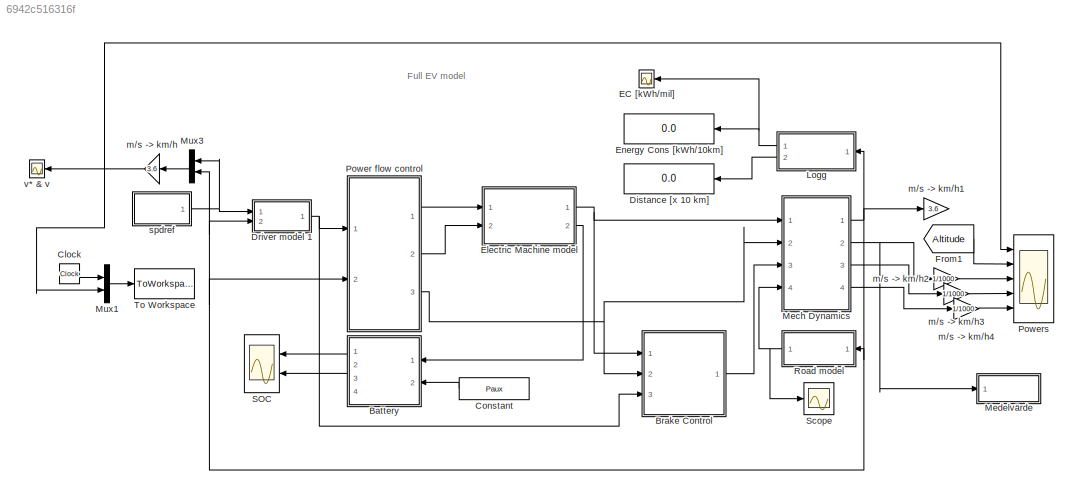
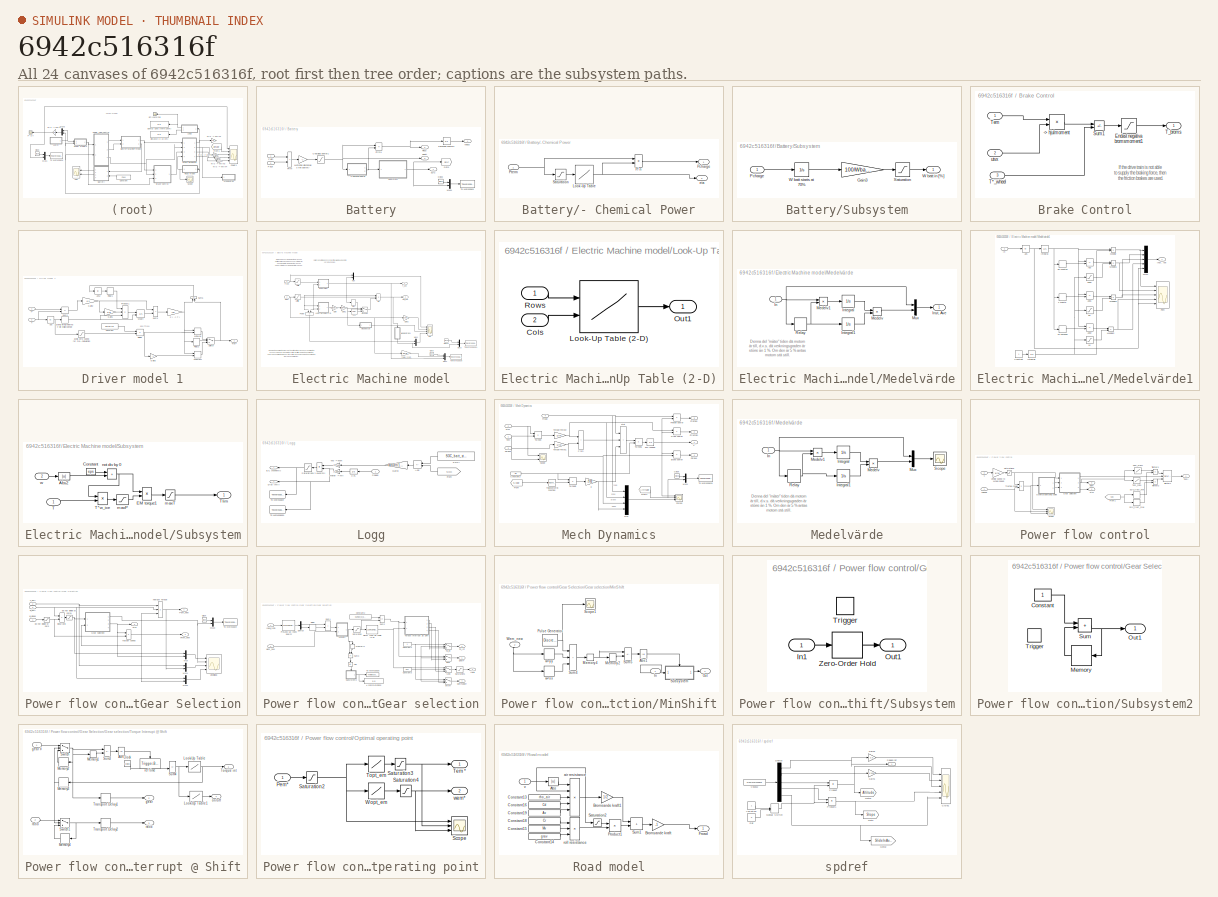
[diagram: thumbnail index - all 24 canvases of the model, root first then tree order]
MODEL slx_6942c516316f
KIND model
CONFIG AbsTol = auto
CONFIG EnableMultiTasking = off
CONFIG FixedStep = auto
CONFIG MaxStep = 0.05
CONFIG MinStep = auto
CONFIG RelTol = 1e-5
CONFIG SampleTimeConstraint = Unconstrained
CONFIG Solver = ode4
CONFIG SolverName = ode4
CONFIG StartTime = 0
CONFIG StopTime = endtime
BLOCK [SubSystem] Battery
  Ports = [2, 4]
  RequestExecContextInheritance = off
BLOCK [SubSystem] Battery/- Chemical Power
  NameLocation = top
  Ports = [1, 2]
  RequestExecContextInheritance = off
BLOCK [Lookup] Battery/- Chemical Power/Look-Up Table
  InputValues = Pbatt
  Table = EtaBATT
BLOCK [Product] Battery/- Chemical Power/P// n
  InputSameDT = on
  Inputs = **
  OutDataTypeStr = Inherit: Same as first input
  Ports = [2, 1]
  SaturateOnIntegerOverflow = on
BLOCK [Outport] Battery/- Chemical Power/Pcharge
  InitialOutput = 0
  VectorParamsAs1DForOutWhenUnconnected = off
BLOCK [Inport] Battery/- Chemical Power/Pterm
BLOCK [Saturate] Battery/- Chemical Power/Saturation
  LowerLimit = min(Pbatt)
  UpperLimit = max(Pbatt)
BLOCK [Outport] Battery/- Chemical Power/eta
  InitialOutput = 0
  Port = 2
  VectorParamsAs1DForOutWhenUnconnected = off
BLOCK [Saturate] Battery/Charging power1
  LowerLimit = -Pbatt_max_new
  UpperLimit = Pbatt_max_new
BLOCK [Clock] Battery/Clock
  NameLocation = top
BLOCK [Integrator] Battery/Dicharing energy1
  Ports = [1, 1]
  UpperSaturationLimit = -1
BLOCK [Goto] Battery/Goto
  GotoTag = SOC
  TagVisibility = global
BLOCK [Gain] Battery/Motoring discharges the battery
  Gain = -1
  NameLocation = top
  OutDataTypeStr = Inherit: Same as input
  ParamDataTypeStr = Inherit: Same as input
  SaturateOnIntegerOverflow = on
BLOCK [Mux] Battery/Mux1
  DisplayOption = bar
  Inputs = 2
  Ports = [2, 1]
BLOCK [Inport] Battery/P aux
  NameLocation = top
  Port = 2
BLOCK [Inport] Battery/P elm
  NameLocation = top
BLOCK [Outport] Battery/Pbatt
  InitialOutput = 0
  NameLocation = top
  Port = 3
  VectorParamsAs1DForOutWhenUnconnected = off
BLOCK [Outport] Battery/Ploss
  InitialOutput = 0
  NameLocation = top
  Port = 2
  VectorParamsAs1DForOutWhenUnconnected = off
BLOCK [Sum] Battery/Ptrm
  IconShape = rectangular
  InputSameDT = on
  OutDataTypeStr = Inherit: Same as first input
  Ports = [2, 1]
  SaturateOnIntegerOverflow = on
BLOCK [Sum] Battery/Ptrm1
  IconShape = rectangular
  InputSameDT = on
  Inputs = +-
  OutDataTypeStr = Inherit: Same as first input
  Ports = [2, 1]
  SaturateOnIntegerOverflow = on
BLOCK [Outport] Battery/SOC
  InitialOutput = 0
  VectorParamsAs1DForOutWhenUnconnected = off
BLOCK [SubSystem] Battery/Subsystem
  Ports = [1, 1]
  RequestExecContextInheritance = off
BLOCK [Gain] Battery/Subsystem/Gain3
  Gain = 100/Wbatt
  OutDataTypeStr = Inherit: Same as input
  ParamDataTypeStr = Inherit: Same as input
  SaturateOnIntegerOverflow = on
BLOCK [Inport] Battery/Subsystem/Pcharge 
BLOCK [Saturate] Battery/Subsystem/Saturation
  LowerLimit = 0
  UpperLimit = 100
BLOCK [Outport] Battery/Subsystem/W batt in [%]
  VectorParamsAs1DForOutWhenUnconnected = off
BLOCK [Integrator] Battery/Subsystem/W batt starts at 70%
  InitialCondition = SOC_batt_start_value/100*Wbatt
  LimitOutput = on
  LowerSaturationLimit = 0
  Ports = [1, 1]
  UpperSaturationLimit = 1.2*Wbatt
BLOCK [ToWorkspace] Battery/To Workspace
  MaxDataPoints = inf
  Ports = [1]
  SampleTime = 1
  VariableName = SOC
BLOCK [Outport] Battery/Wloss
  InitialOutput = 0
  NameLocation = top
  Port = 4
  VectorParamsAs1DForOutWhenUnconnected = off
BLOCK [SubSystem] Brake Control
  Ports = [3, 1]
  RequestExecContextInheritance = off
BLOCK [Product] Brake Control/-> hjulmoment
  InputSameDT = on
  OutDataTypeStr = Inherit: Same as first input
  Ports = [2, 1]
  SaturateOnIntegerOverflow = on
BLOCK [Saturate] Brake Control/Endast negativa bromsmoment1
  LowerLimit = -inf
  UpperLimit = 0
BLOCK [Sum] Brake Control/Sum1
  IconShape = rectangular
  InputSameDT = on
  Inputs = -+
  OutDataTypeStr = Inherit: Same as first input
  Ports = [2, 1]
  SaturateOnIntegerOverflow = on
BLOCK [Inport] Brake Control/T*_wheel
  Port = 3
BLOCK [Outport] Brake Control/T_broms
  InitialOutput = 0
  VectorParamsAs1DForOutWhenUnconnected = off
BLOCK [Inport] Brake Control/Tem
BLOCK [Inport] Brake Control/utvx
  Port = 2
BLOCK [Clock] Clock
  NameLocation = top
BLOCK [Constant] Constant
  Value = Paux
BLOCK [Display] Distance [x 10 km]
  Decimation = 1
  NameLocation = top
  Ports = [1]
BLOCK [SubSystem] Driver model 1
  NameLocation = top
  Ports = [2, 1]
  RequestExecContextInheritance = off
BLOCK [Abs] Driver model 1/Abs
BLOCK [Abs] Driver model 1/Abs2
BLOCK [Constant] Driver model 1/Constant
  Value = Pmax*rw
BLOCK [Product] Driver model 1/Divide
  Inputs = */
  Ports = [2, 1]
BLOCK [Gain] Driver model 1/F * -> T *
  Gain = rw
  OutDataTypeStr = Inherit: Same as input
  ParamDataTypeStr = Inherit: Same as input
  SaturateOnIntegerOverflow = on
BLOCK [Gain] Driver model 1/Gain1
  Gain = 1/Ti
  OutDataTypeStr = Inherit: Same as input
  ParamDataTypeStr = Inherit: Same as input
  SaturateOnIntegerOverflow = on
BLOCK [Gain] Driver model 1/Gain2
  Gain = Kv
  OutDataTypeStr = Inherit: Same as input
  ParamDataTypeStr = Inherit: Same as input
  SaturateOnIntegerOverflow = on
BLOCK [Gain] Driver model 1/Gain3
  Gain = -1
  OutDataTypeStr = Inherit: Same as input
  ParamDataTypeStr = Inherit: Same as input
  SaturateOnIntegerOverflow = on
BLOCK [MinMax] Driver model 1/MinMax
  Inputs = 2
  Ports = [2, 1]
BLOCK [MinMax] Driver model 1/MinMax1
  Function = max
  Inputs = 2
  Ports = [2, 1]
BLOCK [Product] Driver model 1/Product1
  InputSameDT = on
  Inputs = 3
  NameLocation = top
  OutDataTypeStr = Inherit: Same as first input
  Ports = [3, 1]
  SaturateOnIntegerOverflow = on
BLOCK [Relay] Driver model 1/Relay1
  OffOutputValue = 1
  OnOutputValue = 0
BLOCK [Relay] Driver model 1/Relay2
  OffOutputValue = 1
  OnOutputValue = 10
BLOCK [Relay] Driver model 1/Stäng integralverkan vid stillastående
  OffSwitchValue = 0.3-eps
  OnSwitchValue = 0.3
BLOCK [Sum] Driver model 1/Sum2
  IconShape = rectangular
  InputSameDT = on
  Inputs = +-
  OutDataTypeStr = Inherit: Same as first input
  Ports = [2, 1]
  SaturateOnIntegerOverflow = on
BLOCK [Sum] Driver model 1/Sum3
  IconShape = rectangular
  InputSameDT = on
  OutDataTypeStr = Inherit: Same as first input
  Ports = [2, 1]
  SaturateOnIntegerOverflow = on
BLOCK [Sum] Driver model 1/Sum5
  IconShape = rectangular
  InputSameDT = on
  Inputs = +-
  NameLocation = right
  OutDataTypeStr = Inherit: Same as first input
  Ports = [2, 1]
  SaturateOnIntegerOverflow = on
BLOCK [Switch] Driver model 1/Switch
  InputSameDT = off
  SaturateOnIntegerOverflow = off
BLOCK [Outport] Driver model 1/Ttot*
  InitialOutput = 0
  VectorParamsAs1DForOutWhenUnconnected = off
BLOCK [Integrator] Driver model 1/Wbatt
  ExternalReset = falling
  LimitOutput = on
  LowerSaturationLimit = -15000
  NameLocation = top
  Ports = [2, 1]
  UpperSaturationLimit = 15000
BLOCK [Saturate] Driver model 1/avoid zero speed for max torque calculation
  LowerLimit = 5/3.6
  UpperLimit = inf
BLOCK [Inport] Driver model 1/v
  Port = 2
BLOCK [Inport] Driver model 1/v*
BLOCK [Scope] EC [kWh//mil]
  Floating = off
  NameLocation = top
  NumInputPorts = 1
  Ports = [1]
  ScopeSpecificationString = Simulink.scopes.TimeScopeBlockCfg('CurrentConfiguration', extmgr.ConfigurationSet(extmgr.Configuration('Core','General UI',true),extmgr.Configuration('Core','Source UI',true),extmgr.Configuration('Sources','WiredSimulink',true,'DataLoggingVariableName','ScopeData5','DataLoggingSaveFormat','StructureWithTime','DataLoggingMaxPoints','5000000','DataLoggingLimitDataPoints',true,'DataLoggingDecimation'...<+1739ch>
BLOCK [SubSystem] Electric Machine model
  Ports = [2, 2]
  RequestExecContextInheritance = off
BLOCK [Switch] Electric Machine model/0<T<0 ?
BLOCK [Clock] Electric Machine model/Clock
BLOCK [Clock] Electric Machine model/Clock1
BLOCK [Scope] Electric Machine model/EM
  Floating = off
  NumInputPorts = 4
  Ports = [4]
  ScopeSpecificationString = Simulink.scopes.TimeScopeBlockCfg('CurrentConfiguration', extmgr.ConfigurationSet(extmgr.Configuration('Core','General UI',true),extmgr.Configuration('Core','Source UI',true),extmgr.Configuration('Sources','WiredSimulink',true,'DataLoggingSaveFormat','StructureWithTime','DataLoggingMaxPoints','50000','DataLoggingDecimation','1','DataLoggingDecimateData',true),extmgr.Configuration('Visuals','Time D...<+3903ch>
BLOCK [Fcn] Electric Machine model/Fcn
  Expr = 1/u[1]
BLOCK [Gain] Electric Machine model/Gain
  Gain = EtaGEAR
  OutDataTypeStr = Inherit: Same as input
  ParamDataTypeStr = Inherit: Same as input
  SaturateOnIntegerOverflow = on
BLOCK [Gain] Electric Machine model/Gain1
  Gain = EtaPE
  OutDataTypeStr = Inherit: Same as input
  ParamDataTypeStr = Inherit: Same as input
  SaturateOnIntegerOverflow = on
BLOCK [Gain] Electric Machine model/Gain2
  Gain = 30/pi
  OutDataTypeStr = Inherit: Same as input
  ParamDataTypeStr = Inherit: Same as input
  SaturateOnIntegerOverflow = on
BLOCK [Saturate] Electric Machine model/Limit T
  LowerLimit = -Tem_max
  UpperLimit = Tem_max
BLOCK [Saturate] Electric Machine model/Limit w
  LowerLimit = 0
  UpperLimit = wem_max
BLOCK [SubSystem] Electric Machine model/Look-Up Table (2-D)
  Ports = [2, 1]
  RequestExecContextInheritance = off
BLOCK [Inport] Electric Machine model/Look-Up Table (2-D)/Cols
  Port = 2
BLOCK [Lookup2D] Electric Machine model/Look-Up Table (2-D)/Look-Up Table (2-D)
  ColumnIndex = y
  RowIndex = x
  Table = t
BLOCK [Outport] Electric Machine model/Look-Up Table (2-D)/Out1
  VectorParamsAs1DForOutWhenUnconnected = off
BLOCK [Inport] Electric Machine model/Look-Up Table (2-D)/Rows
BLOCK [SubSystem] Electric Machine model/Medelvärde
  Ports = [1, 1]
  RequestExecContextInheritance = off
BLOCK [Inport] Electric Machine model/Medelvärde/In
BLOCK [Outport] Electric Machine model/Medelvärde/Inst, Ave
  VectorParamsAs1DForOutWhenUnconnected = off
BLOCK [Integrator] Electric Machine model/Medelvärde/Integral
  Ports = [1, 1]
BLOCK [Integrator] Electric Machine model/Medelvärde/Integral1
  InitialCondition = eps
  LimitOutput = on
  LowerSaturationLimit = eps
  Ports = [1, 1]
BLOCK [Product] Electric Machine model/Medelvärde/Medelv
  InputSameDT = on
  Inputs = */
  OutDataTypeStr = Inherit: Same as first input
  Ports = [2, 1]
  SaturateOnIntegerOverflow = on
BLOCK [Product] Electric Machine model/Medelvärde/Medelv1
  InputSameDT = on
  Inputs = **
  OutDataTypeStr = Inherit: Same as first input
  Ports = [2, 1]
  SaturateOnIntegerOverflow = on
BLOCK [Mux] Electric Machine model/Medelvärde/Mux
  DisplayOption = bar
  Inputs = 2
  Ports = [2, 1]
BLOCK [Relay] Electric Machine model/Medelvärde/Relay
  OffSwitchValue = 0.04
  OnSwitchValue = 0.05
BLOCK [SubSystem] Electric Machine model/Medelvärde1
  NameLocation = left
  Ports = [1, 1]
  RequestExecContextInheritance = off
BLOCK [TransportDelay] Electric Machine model/Medelvärde1/1 minute
  DelayTime = 60
  Ports = [1, 1]
BLOCK [Saturate] Electric Machine model/Medelvärde1/10
  LowerLimit = 0
  UpperLimit = 10
BLOCK [TransportDelay] Electric Machine model/Medelvärde1/10 seconds
  DelayTime = 10
  Ports = [1, 1]
BLOCK [Saturate] Electric Machine model/Medelvärde1/1800
  LowerLimit = 0
  UpperLimit = 1800
BLOCK [TransportDelay] Electric Machine model/Medelvärde1/30 minutes
  DelayTime = 1800
  Ports = [1, 1]
BLOCK [Saturate] Electric Machine model/Medelvärde1/60
  LowerLimit = 0
  UpperLimit = 60
BLOCK [Abs] Electric Machine model/Medelvärde1/Abs
  SaturateOnIntegerOverflow = off
BLOCK [Sum] Electric Machine model/Medelvärde1/Add
  IconShape = rectangular
  Inputs = +-
  Ports = [2, 1]
BLOCK [Sum] Electric Machine model/Medelvärde1/Add1
  IconShape = rectangular
  Inputs = +-
  Ports = [2, 1]
BLOCK [Sum] Electric Machine model/Medelvärde1/Add2
  IconShape = rectangular
  Inputs = +-
  Ports = [2, 1]
BLOCK [Constant] Electric Machine model/Medelvärde1/Constant
BLOCK [Inport] Electric Machine model/Medelvärde1/In
BLOCK [Outport] Electric Machine model/Medelvärde1/Inst, Ave
  VectorParamsAs1DForOutWhenUnconnected = off
BLOCK [Integrator] Electric Machine model/Medelvärde1/Integral
  Ports = [1, 1]
BLOCK [Integrator] Electric Machine model/Medelvärde1/Integral1
  InitialCondition = eps
  LimitOutput = on
  LowerSaturationLimit = eps
  Ports = [1, 1]
BLOCK [Product] Electric Machine model/Medelvärde1/Medelv
  InputSameDT = on
  Inputs = */
  OutDataTypeStr = Inherit: Same as first input
  Ports = [2, 1]
  SaturateOnIntegerOverflow = on
BLOCK [Product] Electric Machine model/Medelvärde1/Medelv1
  InputSameDT = on
  Inputs = */
  OutDataTypeStr = Inherit: Same as first input
  Ports = [2, 1]
  SaturateOnIntegerOverflow = on
BLOCK [Product] Electric Machine model/Medelvärde1/Medelv2
  InputSameDT = on
  Inputs = */
  OutDataTypeStr = Inherit: Same as first input
  Ports = [2, 1]
  SaturateOnIntegerOverflow = on
BLOCK [Product] Electric Machine model/Medelvärde1/Medelv3
  InputSameDT = on
  Inputs = */
  OutDataTypeStr = Inherit: Same as first input
  Ports = [2, 1]
  SaturateOnIntegerOverflow = on
BLOCK [Mux] Electric Machine model/Medelvärde1/Mux1
  DisplayOption = bar
  Inputs = 5
  Ports = [5, 1]
BLOCK [Scope] Electric Machine model/Medelvärde1/Pem
  Floating = off
  NumInputPorts = 5
  Ports = [5]
  ScopeSpecificationString = Simulink.scopes.TimeScopeBlockCfg('CurrentConfiguration', extmgr.ConfigurationSet(extmgr.Configuration('Core','General UI',true),extmgr.Configuration('Core','Source UI',true),extmgr.Configuration('Sources','WiredSimulink',true,'DataLoggingVariableName','ScopeData1'),extmgr.Configuration('Visuals','Time Domain',true,'SerializedDisplays',{struct('MinYLimReal','-60070.91868','MaxYLimReal','540638.268...<+3599ch>
BLOCK [Mux] Electric Machine model/Mux
  DisplayOption = bar
  Inputs = 2
  Ports = [2, 1]
BLOCK [Mux] Electric Machine model/Mux1
  DisplayOption = bar
  Inputs = 2
  Ports = [2, 1]
BLOCK [Mux] Electric Machine model/Mux2
  DisplayOption = bar
  Inputs = 3
  Ports = [3, 1]
BLOCK [Mux] Electric Machine model/Mux3
  DisplayOption = bar
  Inputs = 2
  Ports = [2, 1]
BLOCK [Product] Electric Machine model/P// n
  InputSameDT = on
  Inputs = **/
  OutDataTypeStr = Inherit: Same as first input
  Ports = [3, 1]
  SaturateOnIntegerOverflow = on
BLOCK [Outport] Electric Machine model/Pel_em
  InitialOutput = 0
  Port = 2
  VectorParamsAs1DForOutWhenUnconnected = off
BLOCK [Product] Electric Machine model/Power
  NameLocation = left
  OutDataTypeStr = Inherit: Same as first input
  Ports = [2, 1]
  SaturateOnIntegerOverflow = on
BLOCK [Signum] Electric Machine model/Sign
BLOCK [SubSystem] Electric Machine model/Subsystem
  Ports = [2, 1]
  RequestExecContextInheritance = off
BLOCK [Abs] Electric Machine model/Subsystem/Abs2
  NameLocation = top
BLOCK [Constant] Electric Machine model/Subsystem/Constant
  NameLocation = top
  Value = eps
BLOCK [Product] Electric Machine model/Subsystem/EM torque1
  InputSameDT = on
  Inputs = /*
  OutDataTypeStr = Inherit: Same as first input
  Ports = [2, 1]
  SaturateOnIntegerOverflow = on
BLOCK [Inport] Electric Machine model/Subsystem/T
BLOCK [Product] Electric Machine model/Subsystem/T*w_ice
  InputSameDT = on
  Inputs = **
  OutDataTypeStr = Inherit: Same as first input
  Ports = [2, 1]
  SaturateOnIntegerOverflow = on
BLOCK [Outport] Electric Machine model/Subsystem/Tlim
  VectorParamsAs1DForOutWhenUnconnected = off
BLOCK [Saturate] Electric Machine model/Subsystem/maxP
  LowerLimit = -Pmax
  UpperLimit = Pmax
BLOCK [Saturate] Electric Machine model/Subsystem/maxT
  LowerLimit = -Tmax
  UpperLimit = Tmax
BLOCK [Sum] Electric Machine model/Subsystem/not div by 0
  IconShape = rectangular
  InputSameDT = on
  NameLocation = top
  OutDataTypeStr = Inherit: Same as first input
  Ports = [2, 1]
  SaturateOnIntegerOverflow = on
BLOCK [Inport] Electric Machine model/Subsystem/w
  Port = 2
BLOCK [Inport] Electric Machine model/T*em
BLOCK [Outport] Electric Machine model/T_em
  InitialOutput = 0
  VectorParamsAs1DForOutWhenUnconnected = off
BLOCK [ToWorkspace] Electric Machine model/To Workspace
  MaxDataPoints = inf
  Ports = [1]
  SampleTime = -1
  VariableName = tWTem
BLOCK [ToWorkspace] Electric Machine model/To Workspace1
  MaxDataPoints = inf
  Ports = [1]
  SampleTime = -1
  VariableName = tPinstPave
BLOCK [Gain] Electric Machine model/rad//s -> rpm
  Gain = 30/pi
  NameLocation = top
  OutDataTypeStr = Inherit: Same as input
  ParamDataTypeStr = Inherit: Same as input
  SaturateOnIntegerOverflow = on
BLOCK [Inport] Electric Machine model/wem
  Port = 2
BLOCK [Display] Energy Cons [kWh//10km]
  Decimation = 1
  NameLocation = top
  Ports = [1]
BLOCK [From] From1
  CloseFcn = tagdialog Close
  GotoTag = Altitude
  IconDisplay = Tag and signal name
  TagVisibility = global
BLOCK [SubSystem] Logg
  NameLocation = top
  Ports = [1, 2]
  RequestExecContextInheritance = off
BLOCK [Product] Logg/-> kWh//mil
  InputSameDT = on
  Inputs = */
  NameLocation = top
  OutDataTypeStr = Inherit: Same as first input
  Ports = [2, 1]
  SaturateOnIntegerOverflow = on
BLOCK [Sum] Logg/Add
  IconShape = rectangular
  Inputs = +-
  NameLocation = top
  Ports = [2, 1]
BLOCK [Outport] Logg/Dist (mil)
  NameLocation = top
  Port = 2
  VectorParamsAs1DForOutWhenUnconnected = off
BLOCK [Outport] Logg/EC [kWhmil]
  NameLocation = top
  VectorParamsAs1DForOutWhenUnconnected = off
BLOCK [From] Logg/From
  GotoTag = SOC
  NameLocation = top
  TagVisibility = global
BLOCK [Gain] Logg/Gain3
  Gain = Wbatt/100
  NameLocation = top
  OutDataTypeStr = Inherit: Same as input
  ParamDataTypeStr = Inherit: Same as input
  SaturateOnIntegerOverflow = on
BLOCK [Constant] Logg/SOC*
  NameLocation = top
  Value = SOC_batt_start_value
BLOCK [Saturate] Logg/Saturation1
  LowerLimit = eps
  UpperLimit = inf
BLOCK [Inport] Logg/Speed
BLOCK [ToWorkspace] Logg/To Workspace
  MaxDataPoints = inf
  NameLocation = top
  Ports = [1]
  SampleTime = -1
  VariableName = EC
BLOCK [ToWorkspace] Logg/To Workspace1
  MaxDataPoints = inf
  NameLocation = top
  Ports = [1]
  SampleTime = -1
  VariableName = DIST
BLOCK [Gain] Logg/Ws -> kWh
  Gain = 1/3.6e6
  NameLocation = top
  OutDataTypeStr = Inherit: Same as input
  ParamDataTypeStr = Inherit: Same as input
  SaturateOnIntegerOverflow = on
BLOCK [Gain] Logg/meter -> mil
  Gain = 1/10000
  OutDataTypeStr = Inherit: Same as input
  ParamDataTypeStr = Inherit: Same as input
  SaturateOnIntegerOverflow = on
BLOCK [Integrator] Logg/v->s
  InitialCondition = 100
  LimitOutput = on
  LowerSaturationLimit = 100
  NameLocation = top
  Ports = [1, 1]
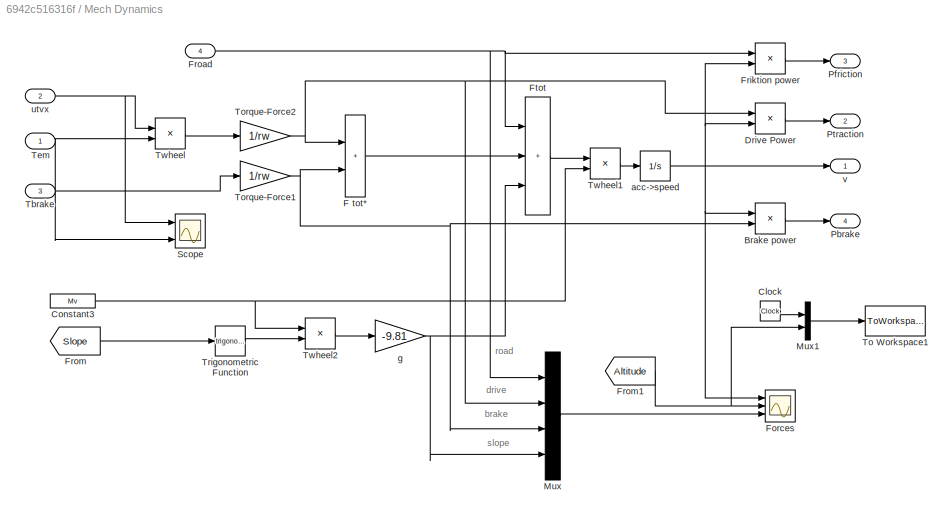
BLOCK [SubSystem] Mech Dynamics
  NameLocation = top
  Ports = [4, 4]
  RequestExecContextInheritance = off
BLOCK [Product] Mech Dynamics/Brake power
  InputSameDT = on
  OutDataTypeStr = Inherit: Same as first input
  Ports = [2, 1]
  SaturateOnIntegerOverflow = on
BLOCK [Clock] Mech Dynamics/Clock
  NameLocation = top
BLOCK [Constant] Mech Dynamics/Constant3
  Value = Mv
BLOCK [Product] Mech Dynamics/Drive Power
  InputSameDT = on
  OutDataTypeStr = Inherit: Same as first input
  Ports = [2, 1]
  SaturateOnIntegerOverflow = on
BLOCK [Sum] Mech Dynamics/F tot*
  IconShape = rectangular
  InputSameDT = on
  OutDataTypeStr = Inherit: Same as first input
  Ports = [2, 1]
  SaturateOnIntegerOverflow = on
BLOCK [Scope] Mech Dynamics/Forces
  Floating = off
  NumInputPorts = 3
  Ports = [3]
  ScopeSpecificationString = Simulink.scopes.TimeScopeBlockCfg('CurrentConfiguration', extmgr.ConfigurationSet(extmgr.Configuration('Core','General UI',true),extmgr.Configuration('Core','Source UI',true),extmgr.Configuration('Sources','WiredSimulink',true,'DataLoggingVariableName','ScopeData4','DataLoggingSaveFormat','StructureWithTime','DataLoggingDecimation','1','DataLoggingDecimateData',true),extmgr.Configuration('Visuals'...<+2981ch>
BLOCK [Product] Mech Dynamics/Friktion power
  InputSameDT = on
  OutDataTypeStr = Inherit: Same as first input
  Ports = [2, 1]
  SaturateOnIntegerOverflow = on
BLOCK [Inport] Mech Dynamics/Froad
  NameLocation = top
  Port = 4
BLOCK [From] Mech Dynamics/From
  CloseFcn = tagdialog Close
  GotoTag = Slope
  IconDisplay = Tag and signal name
  TagVisibility = global
BLOCK [From] Mech Dynamics/From1
  CloseFcn = tagdialog Close
  GotoTag = Altitude
  IconDisplay = Tag and signal name
  TagVisibility = global
BLOCK [Sum] Mech Dynamics/Ftot
  IconShape = rectangular
  InputSameDT = on
  Inputs = +++
  OutDataTypeStr = Inherit: Same as first input
  Ports = [3, 1]
  SaturateOnIntegerOverflow = on
BLOCK [Mux] Mech Dynamics/Mux
  DisplayOption = bar
  Ports = [4, 1]
BLOCK [Mux] Mech Dynamics/Mux1
  DisplayOption = bar
  Inputs = 2
  Ports = [2, 1]
BLOCK [Outport] Mech Dynamics/Pbrake
  InitialOutput = 0
  Port = 4
  VectorParamsAs1DForOutWhenUnconnected = off
BLOCK [Outport] Mech Dynamics/Pfriction
  InitialOutput = 0
  Port = 3
  VectorParamsAs1DForOutWhenUnconnected = off
BLOCK [Outport] Mech Dynamics/Ptraction
  InitialOutput = 0
  Port = 2
  VectorParamsAs1DForOutWhenUnconnected = off
BLOCK [Scope] Mech Dynamics/Scope
  Floating = off
  NumInputPorts = 3
  Ports = [3]
  ScopeSpecificationString = Simulink.scopes.TimeScopeBlockCfg('CurrentConfiguration', extmgr.ConfigurationSet(extmgr.Configuration('Core','General UI',true),extmgr.Configuration('Core','Source UI',true),extmgr.Configuration('Sources','WiredSimulink',true,'DataLoggingVariableName','ScopeData7','DataLoggingSaveFormat','StructureWithTime','DataLoggingDecimation','1','DataLoggingDecimateData',true),extmgr.Configuration('Visuals'...<+2981ch>
BLOCK [Inport] Mech Dynamics/Tbrake
  Port = 3
BLOCK [Inport] Mech Dynamics/Tem
BLOCK [ToWorkspace] Mech Dynamics/To Workspace1
  MaxDataPoints = inf
  Ports = [1]
  SampleTime = -1
  VariableName = Alt
BLOCK [Gain] Mech Dynamics/Torque-Force1
  Gain = 1/rw
  OutDataTypeStr = Inherit: Same as input
  ParamDataTypeStr = Inherit: Same as input
  SaturateOnIntegerOverflow = on
BLOCK [Gain] Mech Dynamics/Torque-Force2
  Gain = 1/rw
  NameLocation = top
  OutDataTypeStr = Inherit: Same as input
  ParamDataTypeStr = Inherit: Same as input
  SaturateOnIntegerOverflow = on
BLOCK [Trigonometry] Mech Dynamics/Trigonometric Function
  Ports = [1, 1]
BLOCK [Product] Mech Dynamics/Twheel
  InputSameDT = on
  OutDataTypeStr = Inherit: Same as first input
  Ports = [2, 1]
  SaturateOnIntegerOverflow = on
BLOCK [Product] Mech Dynamics/Twheel1
  InputSameDT = on
  Inputs = */
  OutDataTypeStr = Inherit: Same as first input
  Ports = [2, 1]
  SaturateOnIntegerOverflow = on
BLOCK [Product] Mech Dynamics/Twheel2
  InputSameDT = on
  Inputs = **
  OutDataTypeStr = Inherit: Same as first input
  Ports = [2, 1]
  SaturateOnIntegerOverflow = on
BLOCK [Integrator] Mech Dynamics/acc->speed
  LimitOutput = on
  LowerSaturationLimit = 0
  Ports = [1, 1]
BLOCK [Gain] Mech Dynamics/g
  Gain = -9.81
  OutDataTypeStr = Inherit: Same as input
  ParamDataTypeStr = Inherit: Same as input
  SaturateOnIntegerOverflow = on
BLOCK [Inport] Mech Dynamics/utvx
  NameLocation = top
  Port = 2
BLOCK [Outport] Mech Dynamics/v
  InitialOutput = 0
  VectorParamsAs1DForOutWhenUnconnected = off
BLOCK [SubSystem] Medelvärde
  Ports = [1]
  RequestExecContextInheritance = off
BLOCK [Inport] Medelvärde/In
BLOCK [Integrator] Medelvärde/Integral
  Ports = [1, 1]
BLOCK [Integrator] Medelvärde/Integral1
  InitialCondition = eps
  LimitOutput = on
  LowerSaturationLimit = eps
  Ports = [1, 1]
BLOCK [Product] Medelvärde/Medelv
  InputSameDT = on
  Inputs = */
  OutDataTypeStr = Inherit: Same as first input
  Ports = [2, 1]
  SaturateOnIntegerOverflow = on
BLOCK [Product] Medelvärde/Medelv1
  InputSameDT = on
  Inputs = **
  OutDataTypeStr = Inherit: Same as first input
  Ports = [2, 1]
  SaturateOnIntegerOverflow = on
BLOCK [Mux] Medelvärde/Mux
  DisplayOption = bar
  Inputs = 2
  Ports = [2, 1]
BLOCK [Relay] Medelvärde/Relay
  OffSwitchValue = 0.04
  OnSwitchValue = 0.05
BLOCK [Scope] Medelvärde/Scope
  Floating = off
  NumInputPorts = 1
  Ports = [1]
  ScopeSpecificationString = Simulink.scopes.TimeScopeBlockCfg('CurrentConfiguration', extmgr.ConfigurationSet(extmgr.Configuration('Core','General UI',true),extmgr.Configuration('Core','Source UI',true),extmgr.Configuration('Sources','WiredSimulink',true,'DataLoggingVariableName','ScopeData6','DataLoggingSaveFormat','StructureWithTime','DataLoggingLimitDataPoints',true,'DataLoggingDecimation','1','DataLoggingDecimateData',tr...<+1632ch>
BLOCK [Mux] Mux1
  DisplayOption = bar
  Inputs = 2
  Ports = [2, 1]
BLOCK [Mux] Mux3
  DisplayOption = bar
  Inputs = 2
  NameLocation = top
  Ports = [2, 1]
BLOCK [SubSystem] Power flow control
  NameLocation = top
  Ports = [2, 3]
  RequestExecContextInheritance = off
BLOCK [From] Power flow control/From1
  CloseFcn = tagdialog Close
  GotoTag = SOC
  TagVisibility = global
BLOCK [SubSystem] Power flow control/Gear Selection
  Ports = [3, 3]
  RequestExecContextInheritance = off
BLOCK [Clock] Power flow control/Gear Selection/Clock
  NameLocation = top
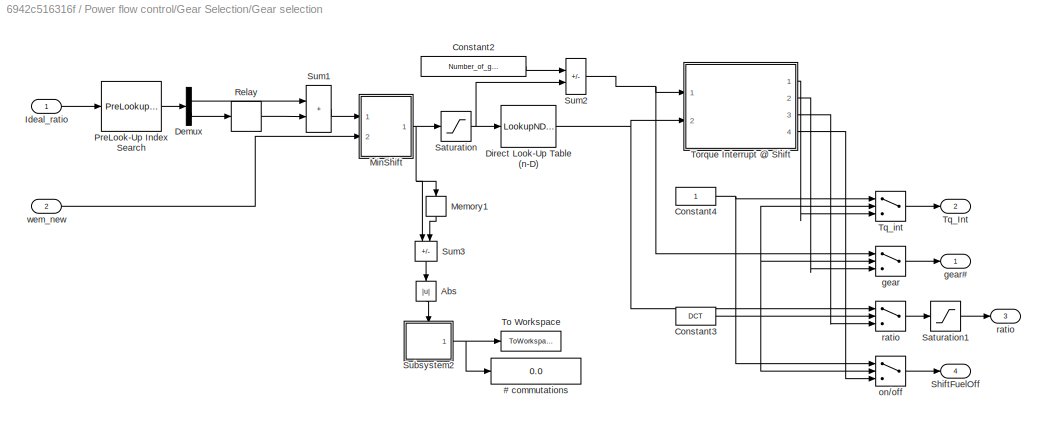
BLOCK [SubSystem] Power flow control/Gear Selection/Gear selection
  Ports = [2, 4]
  RequestExecContextInheritance = off
BLOCK [Display] Power flow control/Gear Selection/Gear selection/# commutations
  Decimation = 1
  Ports = [1]
BLOCK [Abs] Power flow control/Gear Selection/Gear selection/Abs
  NameLocation = right
BLOCK [Constant] Power flow control/Gear Selection/Gear selection/Constant2
  Value = Number_of_gears
BLOCK [Constant] Power flow control/Gear Selection/Gear selection/Constant3
  Value = DCT
BLOCK [Constant] Power flow control/Gear Selection/Gear selection/Constant4
BLOCK [Demux] Power flow control/Gear Selection/Gear selection/Demux
  DisplayOption = none
  Outputs = 2
  Ports = [1, 2]
BLOCK [LookupNDDirect] Power flow control/Gear Selection/Gear selection/Direct Look-Up Table (n-D)
  NumberOfTableDimensions = 1
  Ports = [1, 1]
  Table = Utvx_vect
BLOCK [Inport] Power flow control/Gear Selection/Gear selection/Ideal_ratio
BLOCK [Memory] Power flow control/Gear Selection/Gear selection/Memory1
  NameLocation = left
BLOCK [SubSystem] Power flow control/Gear Selection/Gear selection/MinShift
  Ports = [2, 1]
  RequestExecContextInheritance = off
BLOCK [Abs] Power flow control/Gear Selection/Gear selection/MinShift/Abs1
  NameLocation = top
BLOCK [Inport] Power flow control/Gear Selection/Gear selection/MinShift/In
BLOCK [Memory] Power flow control/Gear Selection/Gear selection/MinShift/Memory2
BLOCK [Memory] Power flow control/Gear Selection/Gear selection/MinShift/Memory4
BLOCK [Outport] Power flow control/Gear Selection/Gear selection/MinShift/Out
  VectorParamsAs1DForOutWhenUnconnected = off
BLOCK [DiscretePulseGenerator] Power flow control/Gear Selection/Gear selection/MinShift/Pulse Generator
  NameLocation = top
  Period = 4
  Ports = [0, 1]
  PulseWidth = 2
  SampleTime = 0.1
BLOCK [Scope] Power flow control/Gear Selection/Gear selection/MinShift/Scope1
  Floating = off
  NumInputPorts = 1
  Ports = [1]
  ScopeSpecificationString = Simulink.scopes.TimeScopeBlockCfg('CurrentConfiguration', extmgr.ConfigurationSet(extmgr.Configuration('Core','General UI',true),extmgr.Configuration('Core','Source UI',true),extmgr.Configuration('Sources','WiredSimulink',true,'DataLoggingVariableName','ScopeData13','DataLoggingSaveFormat','StructureWithTime','DataLoggingLimitDataPoints',true,'DataLoggingDecimation','1','DataLoggingDecimateData',t...<+913ch>
BLOCK [SubSystem] Power flow control/Gear Selection/Gear selection/MinShift/Subsystem
  Ports = [1, 1, 0, 1]
  RequestExecContextInheritance = off
BLOCK [Inport] Power flow control/Gear Selection/Gear selection/MinShift/Subsystem/In1
BLOCK [Outport] Power flow control/Gear Selection/Gear selection/MinShift/Subsystem/Out1
BLOCK [TriggerPort] Power flow control/Gear Selection/Gear selection/MinShift/Subsystem/Trigger
  Ports = []
  StatesWhenEnabling = held
  TriggerType = either
  VariantControl = Variant
BLOCK [ZeroOrderHold] Power flow control/Gear Selection/Gear selection/MinShift/Subsystem/Zero-Order Hold
  SampleTime = -1
BLOCK [Sum] Power flow control/Gear Selection/Gear selection/MinShift/Sum4
  IconShape = rectangular
  Inputs = +++
  Ports = [3, 1]
  SaturateOnIntegerOverflow = on
BLOCK [Sum] Power flow control/Gear Selection/Gear selection/MinShift/Sum5
  IconShape = rectangular
  Inputs = +-
  Ports = [2, 1]
  SaturateOnIntegerOverflow = on
BLOCK [Inport] Power flow control/Gear Selection/Gear selection/MinShift/Wem_new
  NameLocation = right
  Port = 2
BLOCK [Relay] Power flow control/Gear Selection/Gear selection/MinShift/w<xx
  OffOutputValue = 1
  OffSwitchValue = wem_min*1.1
  OnOutputValue = 0
  OnSwitchValue = wem_min*1.2
BLOCK [Relay] Power flow control/Gear Selection/Gear selection/MinShift/w>yy
  OffSwitchValue = wem_max*0.65
  OnSwitchValue = wem_max*0.66
BLOCK [Reference] Power flow control/Gear Selection/Gear selection/PreLook-Up Index Search  REF=simulink_need_slupdate/PreLookup
Index Search
  Ports = [1, 1]
  SourceBlock = simulink_need_slupdate/PreLookup\nIndex Search
  SourceProductBaseCode = SL
  SourceType = LookupIdxSearch
BLOCK [Relay] Power flow control/Gear Selection/Gear selection/Relay
  OffSwitchValue = 0.48
  OnSwitchValue = 0.52
BLOCK [Saturate] Power flow control/Gear Selection/Gear selection/Saturation
  LowerLimit = 0
  UpperLimit = Number_of_gears-1
BLOCK [Saturate] Power flow control/Gear Selection/Gear selection/Saturation1
  LowerLimit = min(Utvx_vect)
  UpperLimit = max(Utvx_vect)
BLOCK [Outport] Power flow control/Gear Selection/Gear selection/ShiftFuelOff
  Port = 4
  VectorParamsAs1DForOutWhenUnconnected = off
BLOCK [SubSystem] Power flow control/Gear Selection/Gear selection/Subsystem2
  Ports = [0, 1, 0, 1]
  RequestExecContextInheritance = off
  TreatAsAtomicUnit = on
BLOCK [Constant] Power flow control/Gear Selection/Gear selection/Subsystem2/Constant
BLOCK [Memory] Power flow control/Gear Selection/Gear selection/Subsystem2/Memory
  InheritSampleTime = on
  NameLocation = top
BLOCK [Outport] Power flow control/Gear Selection/Gear selection/Subsystem2/Out1
  VectorParamsAs1DForOutWhenUnconnected = off
BLOCK [Sum] Power flow control/Gear Selection/Gear selection/Subsystem2/Sum
  IconShape = rectangular
  InputSameDT = on
  OutDataTypeStr = Inherit: Same as first input
  Ports = [2, 1]
  SaturateOnIntegerOverflow = on
BLOCK [TriggerPort] Power flow control/Gear Selection/Gear selection/Subsystem2/Trigger
  Ports = []
  TriggerType = either
  VariantControl = Variant
BLOCK [Sum] Power flow control/Gear Selection/Gear selection/Sum1
  IconShape = rectangular
  Ports = [2, 1]
  SaturateOnIntegerOverflow = on
BLOCK [Sum] Power flow control/Gear Selection/Gear selection/Sum2
  IconShape = rectangular
  Inputs = +-
  Ports = [2, 1]
  SaturateOnIntegerOverflow = on
BLOCK [Sum] Power flow control/Gear Selection/Gear selection/Sum3
  IconShape = rectangular
  Inputs = +-
  NameLocation = left
  Ports = [2, 1]
  SaturateOnIntegerOverflow = on
BLOCK [ToWorkspace] Power flow control/Gear Selection/Gear selection/To Workspace
  MaxDataPoints = inf
  Ports = [1]
  SampleTime = -1
  VariableName = shifts
BLOCK [SubSystem] Power flow control/Gear Selection/Gear selection/Torque Interrupt @ Shift
  Ports = [2, 4]
  RequestExecContextInheritance = off
BLOCK [Abs] Power flow control/Gear Selection/Gear selection/Torque Interrupt @ Shift/Abs
  NameLocation = top
BLOCK [Clock] Power flow control/Gear Selection/Gear selection/Torque Interrupt @ Shift/Clock
BLOCK [Lookup] Power flow control/Gear Selection/Gear selection/Torque Interrupt @ Shift/Look-Up Table
  InputValues = [0 0.2 0.8 1.0]
  LookUpMeth = Interpolation-Use End Values
  Table = [1 0 0 1]
BLOCK [Lookup] Power flow control/Gear Selection/Gear selection/Torque Interrupt @ Shift/Look-Up Table1
  InputValues = [0 0.2 0.2+eps 0.8-eps 0.8 1.0]
  LookUpMeth = Interpolation-Use End Values
  Table = [1 1 0 0 1 1]
BLOCK [Memory] Power flow control/Gear Selection/Gear selection/Torque Interrupt @ Shift/Memory1
BLOCK [Memory] Power flow control/Gear Selection/Gear selection/Torque Interrupt @ Shift/Memory2
  InheritSampleTime = on
BLOCK [Memory] Power flow control/Gear Selection/Gear selection/Torque Interrupt @ Shift/Memory3
  InheritSampleTime = on
BLOCK [Memory] Power flow control/Gear Selection/Gear selection/Torque Interrupt @ Shift/Memory4
  InheritSampleTime = on
BLOCK [Sum] Power flow control/Gear Selection/Gear selection/Torque Interrupt @ Shift/Sum3
  IconShape = rectangular
  Inputs = +-
  Ports = [2, 1]
  SaturateOnIntegerOverflow = on
BLOCK [Sum] Power flow control/Gear Selection/Gear selection/Torque Interrupt @ Shift/Sum4
  IconShape = rectangular
  Inputs = -+
  Ports = [2, 1]
  SaturateOnIntegerOverflow = on
BLOCK [Switch] Power flow control/Gear Selection/Gear selection/Torque Interrupt @ Shift/Switch
  InputSameDT = off
  Threshold = 0.5
BLOCK [Switch] Power flow control/Gear Selection/Gear selection/Torque Interrupt @ Shift/Switch1
  InputSameDT = off
  Threshold = 0.5
BLOCK [Outport] Power flow control/Gear Selection/Gear selection/Torque Interrupt @ Shift/Torque int
  VectorParamsAs1DForOutWhenUnconnected = off
BLOCK [TransportDelay] Power flow control/Gear Selection/Gear selection/Torque Interrupt @ Shift/Transport Delay1
  DelayTime = 0.6
  Ports = [1, 1]
BLOCK [TransportDelay] Power flow control/Gear Selection/Gear selection/Torque Interrupt @ Shift/Transport Delay2
  DelayTime = 0.6
  Ports = [1, 1]
BLOCK [Outport] Power flow control/Gear Selection/Gear selection/Torque Interrupt @ Shift/gear
  Port = 2
  VectorParamsAs1DForOutWhenUnconnected = off
BLOCK [Inport] Power flow control/Gear Selection/Gear selection/Torque Interrupt @ Shift/gear #
BLOCK [Outport] Power flow control/Gear Selection/Gear selection/Torque Interrupt @ Shift/on//off
  Port = 4
  VectorParamsAs1DForOutWhenUnconnected = off
BLOCK [Inport] Power flow control/Gear Selection/Gear selection/Torque Interrupt @ Shift/ratio
  Port = 2
BLOCK [Outport] Power flow control/Gear Selection/Gear selection/Torque Interrupt @ Shift/ratio 
  Port = 3
  VectorParamsAs1DForOutWhenUnconnected = off
BLOCK [Reference] Power flow control/Gear Selection/Gear selection/Torque Interrupt @ Shift/ref time  REF=simulink/Model-Wide
Utilities/Trigger-Based
Linearization
  Ports = [0, 0, 0, 1]
  SourceBlock = simulink/Model-Wide\nUtilities/Trigger-Based\nLinearization
  SourceProductBaseCode = SL
  SourceType = Triggered Linearization
BLOCK [Outport] Power flow control/Gear Selection/Gear selection/Tq_Int
  NameLocation = top
  Port = 2
  VectorParamsAs1DForOutWhenUnconnected = off
BLOCK [Switch] Power flow control/Gear Selection/Gear selection/Tq_int
  InputSameDT = off
  Threshold = 0.5
BLOCK [Switch] Power flow control/Gear Selection/Gear selection/gear 
  InputSameDT = off
  Threshold = 0.5
BLOCK [Outport] Power flow control/Gear Selection/Gear selection/gear#
  VectorParamsAs1DForOutWhenUnconnected = off
BLOCK [Switch] Power flow control/Gear Selection/Gear selection/on//off 
  InputSameDT = off
  Threshold = 0.5
BLOCK [Outport] Power flow control/Gear Selection/Gear selection/ratio
  Port = 3
  VectorParamsAs1DForOutWhenUnconnected = off
BLOCK [Switch] Power flow control/Gear Selection/Gear selection/ratio 
  InputSameDT = off
  Threshold = 0.5
BLOCK [Inport] Power flow control/Gear Selection/Gear selection/wem_new
  NameLocation = top
  Port = 2
BLOCK [Mux] Power flow control/Gear Selection/Mux
  DisplayOption = bar
  Inputs = 2
  Ports = [2, 1]
BLOCK [Mux] Power flow control/Gear Selection/Mux1
  DisplayOption = bar
  Inputs = 2
  Ports = [2, 1]
BLOCK [Mux] Power flow control/Gear Selection/Mux2
  DisplayOption = bar
  Inputs = 2
  Ports = [2, 1]
BLOCK [Mux] Power flow control/Gear Selection/Mux3
  DisplayOption = bar
  Inputs = 2
  Ports = [2, 1]
BLOCK [Outport] Power flow control/Gear Selection/T*em_new
  VectorParamsAs1DForOutWhenUnconnected = off
BLOCK [Inport] Power flow control/Gear Selection/T_em*
  NameLocation = top
  Port = 2
BLOCK [ToWorkspace] Power flow control/Gear Selection/To Workspace
  MaxDataPoints = inf
  Ports = [1]
  SampleTime = -1
  VariableName = Gear
BLOCK [Scope] Power flow control/Gear Selection/Växellåda
  Floating = off
  NumInputPorts = 4
  Ports = [4]
  ScopeSpecificationString = Simulink.scopes.TimeScopeBlockCfg('CurrentConfiguration', extmgr.ConfigurationSet(extmgr.Configuration('Core','General UI',true),extmgr.Configuration('Core','Source UI',true),extmgr.Configuration('Sources','WiredSimulink',true,'DataLoggingVariableName','ScopeData4','DataLoggingSaveFormat','StructureWithTime','DataLoggingMaxPoints','50000','DataLoggingDecimation','1','DataLoggingDecimateData',true)...<+3881ch>
BLOCK [Saturate] Power flow control/Gear Selection/do not divide by zero
  LowerLimit = wem_min/utvx_max
  UpperLimit = inf
BLOCK [Saturate] Power flow control/Gear Selection/do not divide by zero1
  LowerLimit = eps
  UpperLimit = 1.2*max(Utvx_vect)
BLOCK [Product] Power flow control/Gear Selection/ideal ratio
  InputSameDT = on
  Inputs = */
  NameLocation = top
  OutDataTypeStr = Inherit: Same as first input
  Ports = [2, 1]
  SaturateOnIntegerOverflow = on
BLOCK [Product] Power flow control/Gear Selection/new EM Torque
  InputSameDT = on
  Inputs = **/
  NameLocation = top
  OutDataTypeStr = Inherit: Same as first input
  Ports = [3, 1]
  SaturateOnIntegerOverflow = on
BLOCK [Product] Power flow control/Gear Selection/real EM speed
  InputSameDT = on
  Inputs = **
  OutDataTypeStr = Inherit: Same as first input
  Ports = [2, 1]
  SaturateOnIntegerOverflow = on
BLOCK [Outport] Power flow control/Gear Selection/utvx
  Port = 3
  VectorParamsAs1DForOutWhenUnconnected = off
BLOCK [Outport] Power flow control/Gear Selection/w*em_new
  Port = 2
  VectorParamsAs1DForOutWhenUnconnected = off
BLOCK [Inport] Power flow control/Gear Selection/w_em*
  Port = 3
BLOCK [Inport] Power flow control/Gear Selection/w_wheel
BLOCK [SubSystem] Power flow control/Optimal operating point
  Ports = [1, 2]
  RequestExecContextInheritance = off
BLOCK [Inport] Power flow control/Optimal operating point/Pem*
BLOCK [Saturate] Power flow control/Optimal operating point/Saturation2
  LowerLimit = -Pem_max
  UpperLimit = Pem_max
BLOCK [Saturate] Power flow control/Optimal operating point/Saturation3
  LowerLimit = -Tem_max
  UpperLimit = Tem_max
BLOCK [Saturate] Power flow control/Optimal operating point/Saturation4
  LowerLimit = 0
  UpperLimit = wem_max
BLOCK [Scope] Power flow control/Optimal operating point/Scope
  Floating = off
  NumInputPorts = 3
  Ports = [3]
  ScopeSpecificationString = Simulink.scopes.TimeScopeBlockCfg('CurrentConfiguration', extmgr.ConfigurationSet(extmgr.Configuration('Core','General UI',true),extmgr.Configuration('Core','Source UI',true),extmgr.Configuration('Sources','WiredSimulink',true,'DataLoggingVariableName','ScopeData3','DataLoggingSaveFormat','StructureWithTime','DataLoggingDecimation','1','DataLoggingDecimateData',true),extmgr.Configuration('Visuals'...<+2960ch>
BLOCK [Outport] Power flow control/Optimal operating point/Tem *
  InitialOutput = 0
  VectorParamsAs1DForOutWhenUnconnected = off
BLOCK [Lookup] Power flow control/Optimal operating point/Topt_em
  InputValues = PtoTem(:,1)
  LookUpMeth = Interpolation-Use End Values
  Table = PtoTem(:,2)
BLOCK [Lookup] Power flow control/Optimal operating point/Wopt_em
  InputValues = PtoTem(:,1)
  LookUpMeth = Interpolation-Use End Values
  Table = PtoTem(:,4)
BLOCK [Outport] Power flow control/Optimal operating point/wem*
  InitialOutput = 0
  Port = 2
  VectorParamsAs1DForOutWhenUnconnected = off
BLOCK [Relay] Power flow control/SOC_tract_max
  OffOutputValue = 1
  OffSwitchValue = SOC_tract_max-1
  OnOutputValue = 0
  OnSwitchValue = SOC_tract_max+1
BLOCK [Relay] Power flow control/SOC_tract_min
  NameLocation = top
  OffSwitchValue = SOC_tract_min-1
  OnSwitchValue = SOC_tract_min+1
BLOCK [Saturate] Power flow control/Saturation3
  LowerLimit = 1
  UpperLimit = inf
BLOCK [Scope] Power flow control/Scope
  Floating = off
  NumInputPorts = 3
  Ports = [3]
  ScopeSpecificationString = Simulink.scopes.TimeScopeBlockCfg('CurrentConfiguration', extmgr.ConfigurationSet(extmgr.Configuration('Core','General UI',true),extmgr.Configuration('Core','Source UI',true),extmgr.Configuration('Sources','WiredSimulink',true,'DataLoggingVariableName','ScopeData1','DataLoggingSaveFormat','StructureWithTime','DataLoggingDecimation','1','DataLoggingDecimateData',true),extmgr.Configuration('Visuals'...<+3003ch>
BLOCK [Outport] Power flow control/Tem*
  VectorParamsAs1DForOutWhenUnconnected = off
BLOCK [Lookup] Power flow control/Tem_max1
  InputValues = Wem
  NameLocation = top
  Table = Tem_lim
BLOCK [Lookup] Power flow control/Tem_min1
  InputValues = Wem
  Table = -Tem_lim
BLOCK [Reference] Power flow control/Tlimiter1  REF=simulink/Discontinuities/Saturation
Dynamic
  Ports = [3, 1]
  SourceBlock = simulink/Discontinuities/Saturation\nDynamic
  SourceProductBaseCode = SL
  SourceType = Saturation Dynamic
BLOCK [Product] Power flow control/Tlimiter2
  InputSameDT = on
  Inputs = **
  OutDataTypeStr = Inherit: Same as first input
  Ports = [2, 1]
  SaturateOnIntegerOverflow = on
BLOCK [Product] Power flow control/Tlimiter3
  InputSameDT = on
  Inputs = **
  OutDataTypeStr = Inherit: Same as first input
  Ports = [2, 1]
  SaturateOnIntegerOverflow = on
BLOCK [Product] Power flow control/Tractive Power
  InputSameDT = on
  OutDataTypeStr = Inherit: Same as first input
  Ports = [2, 1]
  SaturateOnIntegerOverflow = on
BLOCK [Inport] Power flow control/Twheel*
BLOCK [Gain] Power flow control/Vehicle speed to Wheel speed
  Gain = 1/rw
  OutDataTypeStr = Inherit: Same as input
  ParamDataTypeStr = Inherit: Same as input
  SaturateOnIntegerOverflow = on
BLOCK [Outport] Power flow control/utvx
  Port = 3
  VectorParamsAs1DForOutWhenUnconnected = off
BLOCK [Inport] Power flow control/v
  Port = 2
BLOCK [Outport] Power flow control/wem
  Port = 2
  VectorParamsAs1DForOutWhenUnconnected = off
BLOCK [Scope] Powers
  Floating = off
  NumInputPorts = 5
  Ports = [5]
  ScopeSpecificationString = Simulink.scopes.TimeScopeBlockCfg('CurrentConfiguration', extmgr.ConfigurationSet(extmgr.Configuration('Core','General UI',true),extmgr.Configuration('Core','Source UI',true),extmgr.Configuration('Sources','WiredSimulink',true,'DataLoggingVariableName','ScopeData11','DataLoggingSaveFormat','StructureWithTime','DataLoggingMaxPoints','5000000','DataLoggingDecimation','1','DataLoggingDecimateData',tr...<+4484ch>
BLOCK [SubSystem] Road model
  Ports = [1, 1]
  RequestExecContextInheritance = off
BLOCK [Abs] Road model/Abs
  NameLocation = top
BLOCK [Gain] Road model/Bromsande kraft
  Gain = -1
  OutDataTypeStr = Inherit: Same as input
  ParamDataTypeStr = Inherit: Same as input
  SaturateOnIntegerOverflow = on
BLOCK [Gain] Road model/Bromsande kraft1
  Gain = 1/2
  OutDataTypeStr = Inherit: Same as input
  ParamDataTypeStr = Inherit: Same as input
  SaturateOnIntegerOverflow = on
BLOCK [Constant] Road model/Constant13
  Value = rho_air
BLOCK [Constant] Road model/Constant14
  Value = grav
BLOCK [Constant] Road model/Constant15
  Value = Mv
BLOCK [Constant] Road model/Constant16
  Value = Cd
BLOCK [Constant] Road model/Constant18
  Value = Cr
BLOCK [Constant] Road model/Constant19
  Value = Av
BLOCK [Outport] Road model/Froad
  InitialOutput = 0
  VectorParamsAs1DForOutWhenUnconnected = off
BLOCK [Product] Road model/Product1
  InputSameDT = on
  OutDataTypeStr = Inherit: Same as first input
  Ports = [2, 1]
  SaturateOnIntegerOverflow = on
BLOCK [Saturate] Road model/Saturation2
  LowerLimit = -1
  NameLocation = top
  UpperLimit = 1
BLOCK [Sum] Road model/Sum1
  IconShape = rectangular
  InputSameDT = on
  OutDataTypeStr = Inherit: Same as first input
  Ports = [2, 1]
  SaturateOnIntegerOverflow = on
BLOCK [Product] Road model/air resistance
  InputSameDT = on
  Inputs = 5
  NameLocation = top
  OutDataTypeStr = Inherit: Same as first input
  Ports = [5, 1]
  SaturateOnIntegerOverflow = on
BLOCK [Product] Road model/roll resistance
  InputSameDT = on
  Inputs = 3
  OutDataTypeStr = Inherit: Same as first input
  Ports = [3, 1]
  SaturateOnIntegerOverflow = on
BLOCK [Inport] Road model/v 
  NameLocation = top
BLOCK [Scope] SOC
  Floating = off
  NameLocation = top
  NumInputPorts = 2
  Ports = [2]
  ScopeSpecificationString = Simulink.scopes.TimeScopeBlockCfg('CurrentConfiguration', extmgr.ConfigurationSet(extmgr.Configuration('Core','General UI',true),extmgr.Configuration('Core','Source UI',true),extmgr.Configuration('Sources','WiredSimulink',true,'DataLoggingVariableName','ScopeData10','DataLoggingSaveFormat','StructureWithTime','DataLoggingMaxPoints','5000000','DataLoggingLimitDataPoints',true,'DataLoggingDecimation...<+2435ch>
BLOCK [Scope] Scope
  Floating = off
  NumInputPorts = 1
  Ports = [1]
  ScopeSpecificationString = Simulink.scopes.TimeScopeBlockCfg('CurrentConfiguration', extmgr.ConfigurationSet(extmgr.Configuration('Core','General UI',true),extmgr.Configuration('Core','Source UI',true),extmgr.Configuration('Sources','WiredSimulink',true,'DataLoggingVariableName','ScopeData8','DataLoggingSaveFormat','StructureWithTime','DataLoggingDecimation','1','DataLoggingDecimateData',true),extmgr.Configuration('Visuals'...<+877ch>
BLOCK [ToWorkspace] To Workspace
  MaxDataPoints = inf
  Ports = [1]
  SampleTime = -1
  VariableName = Speed
BLOCK [Gain] m//s -> km//h
  Gain = 3.6
  NameLocation = top
  OutDataTypeStr = Inherit: Same as input
  ParamDataTypeStr = Inherit: Same as input
  SaturateOnIntegerOverflow = on
BLOCK [Gain] m//s -> km//h1
  Gain = 3.6
  NameLocation = top
  OutDataTypeStr = Inherit: Same as input
  ParamDataTypeStr = Inherit: Same as input
  SaturateOnIntegerOverflow = on
BLOCK [Gain] m//s -> km//h2
  Gain = 1/1000
  NameLocation = top
  OutDataTypeStr = Inherit: Same as input
  ParamDataTypeStr = Inherit: Same as input
  SaturateOnIntegerOverflow = on
BLOCK [Gain] m//s -> km//h3
  Gain = 1/1000
  NameLocation = top
  OutDataTypeStr = Inherit: Same as input
  ParamDataTypeStr = Inherit: Same as input
  SaturateOnIntegerOverflow = on
BLOCK [Gain] m//s -> km//h4
  Gain = 1/1000
  NameLocation = top
  OutDataTypeStr = Inherit: Same as input
  ParamDataTypeStr = Inherit: Same as input
  SaturateOnIntegerOverflow = on
BLOCK [SubSystem] spdref
  Ports = [0, 1]
  RequestExecContextInheritance = off
BLOCK [Scope] spdref/Cycle1
  Floating = off
  NumInputPorts = 5
  Ports = [5]
  ScopeSpecificationString = Simulink.scopes.TimeScopeBlockCfg('CurrentConfiguration', extmgr.ConfigurationSet(extmgr.Configuration('Core','General UI',true),extmgr.Configuration('Core','Source UI',true),extmgr.Configuration('Sources','WiredSimulink',true,'DataLoggingVariableName','ScopeData2','DataLoggingSaveFormat','StructureWithTime','DataLoggingDecimation','1','DataLoggingDecimateData',true),extmgr.Configuration('Visuals'...<+4425ch>
BLOCK [Demux] spdref/Demux
  Outputs = 5
  Ports = [1, 5]
BLOCK [Constant] spdref/Flat
  Value = 0
BLOCK [Gain] spdref/Gain1
  Gain = 1/1000
  OutDataTypeStr = Inherit: Same as input
  ParamDataTypeStr = Inherit: Same as input
  SaturateOnIntegerOverflow = on
BLOCK [Gain] spdref/Gain2
  Gain = 3.6
  OutDataTypeStr = Inherit: Same as input
  ParamDataTypeStr = Inherit: Same as input
  SaturateOnIntegerOverflow = on
BLOCK [Goto] spdref/Goto
  GotoTag = Slope
  IconDisplay = Tag and signal name
  TagVisibility = global
BLOCK [Goto] spdref/Goto1
  GotoTag = Altitude
  IconDisplay = Tag and signal name
  TagVisibility = global
BLOCK [Goto] spdref/Goto2
  GotoTag = SlideInAvailable
  IconDisplay = Tag and signal name
  TagVisibility = global
BLOCK [ManualSwitch] spdref/Manual Switch
  CurrentSetting = 0
BLOCK [Product] spdref/Product
  Ports = [2, 1]
BLOCK [Product] spdref/Product1
  Ports = [2, 1]
BLOCK [Outport] spdref/Speed ref
  VectorParamsAs1DForOutWhenUnconnected = off
BLOCK [Constant] spdref/Variation
BLOCK [FromWorkspace] spdref/v-buss2
  SampleTime = .2
  VariableName = cycle
  ZeroCross = off
BLOCK [Scope] v* & v
  Floating = off
  NameLocation = top
  NumInputPorts = 1
  Ports = [1]
  ScopeSpecificationString = Simulink.scopes.TimeScopeBlockCfg('CurrentConfiguration', extmgr.ConfigurationSet(extmgr.Configuration('Core','General UI',true),extmgr.Configuration('Core','Source UI',true),extmgr.Configuration('Sources','WiredSimulink',true,'DataLoggingSaveFormat','StructureWithTime','DataLoggingMaxPoints','5000000','DataLoggingLimitDataPoints',true,'DataLoggingDecimation','1','DataLoggingDecimateData',true),ex...<+1855ch>
ANNOTATION (root): Full EV model
ANNOTATION Brake Control: If the drive train is not able to supply the braking force, then the friction brakes are used.
ANNOTATION Driver model 1: abs(Tmax)
ANNOTATION Electric Machine model: Deb elektriska effekt som dras från batteriet beräknas ur axeleffekten och verkningsgraden. I motordrift är den tillförda elektriska effekten högre än axeleffekten. I generatordrift är den avgivna elektriska effekten lägre än axeleffekten.
ANNOTATION Electric Machine model: Elmaskinens vridmoment begränsas av tillgänglig spännings och varvtal. Därför kan maximalt vridmoment beräknas om varvtalet och vridmomentet är kända.
ANNOTATION Electric Machine model: OM fordonet inte går i hybriddrift skall elmaskinen inte vara inkopplad.
ANNOTATION Electric Machine model/Medelvärde: Denna del "mäter" tiden då motorn är till, d.v.s. då verkningsgraden är större än 1 %. Om den är 5 % antas motorn stå still.
ANNOTATION Mech Dynamics: brake
ANNOTATION Mech Dynamics: drive
ANNOTATION Mech Dynamics: road
ANNOTATION Mech Dynamics: slope
ANNOTATION Medelvärde: Denna del "mäter" tiden då motorn är till, d.v.s. då verkningsgraden är större än 1 %. Om den är 5 % antas motorn stå still.
NET Battery/- Chemical Power/Look-Up Table:1 -> Battery/- Chemical Power/P// n:2, Battery/- Chemical Power/eta:1
LINE Battery/- Chemical Power/P// n:1 -> Battery/- Chemical Power/Pcharge:1
NET Battery/- Chemical Power/Pterm:1 -> Battery/- Chemical Power/P// n:1, Battery/- Chemical Power/Saturation:1
LINE Battery/- Chemical Power/Saturation:1 -> Battery/- Chemical Power/Look-Up Table:1
NET Battery/- Chemical Power:1 -> Battery/Ptrm1:2, Battery/Subsystem:1
NET Battery/Charging power1:1 -> Battery/- Chemical Power:1, Battery/Pbatt:1, Battery/Ptrm1:1
LINE Battery/Clock:1 -> Battery/Mux1:1
LINE Battery/Dicharing energy1:1 -> Battery/Wloss:1
LINE Battery/Motoring discharges the battery:1 -> Battery/Charging power1:1
LINE Battery/Mux1:1 -> Battery/To Workspace:1
LINE Battery/P aux:1 -> Battery/Ptrm:2
LINE Battery/P elm:1 -> Battery/Ptrm:1
NET Battery/Ptrm1:1 -> Battery/Dicharing energy1:1, Battery/Ploss:1
LINE Battery/Ptrm:1 -> Battery/Motoring discharges the battery:1
LINE Battery/Subsystem/Gain3:1 -> Battery/Subsystem/Saturation:1
LINE Battery/Subsystem/Pcharge :1 -> Battery/Subsystem/W batt starts at 70%:1
LINE Battery/Subsystem/Saturation:1 -> Battery/Subsystem/W batt in [%]:1
LINE Battery/Subsystem/W batt starts at 70%:1 -> Battery/Subsystem/Gain3:1
NET Battery/Subsystem:1 -> Battery/Goto:1, Battery/Mux1:2, Battery/SOC:1
LINE Battery:1 -> SOC:1
LINE Battery:3 -> SOC:2
LINE Brake Control/-> hjulmoment:1 -> Brake Control/Sum1:1
LINE Brake Control/Endast negativa bromsmoment1:1 -> Brake Control/T_broms:1
LINE Brake Control/Sum1:1 -> Brake Control/Endast negativa bromsmoment1:1
LINE Brake Control/T*_wheel:1 -> Brake Control/Sum1:2
LINE Brake Control/Tem:1 -> Brake Control/-> hjulmoment:1
LINE Brake Control/utvx:1 -> Brake Control/-> hjulmoment:2
LINE Brake Control:1 -> Mech Dynamics:3
LINE Clock:1 -> Mux1:1
LINE Constant:1 -> Battery:2
LINE Driver model 1/Abs2:1 -> Driver model 1/Relay1:1
NET Driver model 1/Abs:1 -> Driver model 1/Stäng integralverkan vid stillastående:1, Driver model 1/avoid zero speed for max torque calculation:1
LINE Driver model 1/Constant:1 -> Driver model 1/Divide:1
NET Driver model 1/Divide:1 -> Driver model 1/Gain3:1, Driver model 1/MinMax:2
NET Driver model 1/F * -> T *:1 -> Driver model 1/MinMax1:1, Driver model 1/MinMax:1, Driver model 1/Relay2:1, Driver model 1/Sum5:1
LINE Driver model 1/Gain1:1 -> Driver model 1/Product1:2
NET Driver model 1/Gain2:1 -> Driver model 1/Gain1:1, Driver model 1/Sum3:1
LINE Driver model 1/Gain3:1 -> Driver model 1/MinMax1:2
LINE Driver model 1/MinMax1:1 -> Driver model 1/Switch:3
LINE Driver model 1/MinMax:1 -> Driver model 1/Switch:1
LINE Driver model 1/Product1:1 -> Driver model 1/Wbatt:1
LINE Driver model 1/Relay1:1 -> Driver model 1/Product1:1
LINE Driver model 1/Relay2:1 -> Driver model 1/Switch:2
NET Driver model 1/Stäng integralverkan vid stillastående:1 -> Driver model 1/Product1:3, Driver model 1/Wbatt:2
LINE Driver model 1/Sum2:1 -> Driver model 1/Gain2:1
LINE Driver model 1/Sum3:1 -> Driver model 1/F * -> T *:1
LINE Driver model 1/Sum5:1 -> Driver model 1/Abs2:1
NET Driver model 1/Switch:1 -> Driver model 1/Sum5:2, Driver model 1/Ttot*:1
LINE Driver model 1/Wbatt:1 -> Driver model 1/Sum3:2
LINE Driver model 1/avoid zero speed for max torque calculation:1 -> Driver model 1/Divide:2
LINE Driver model 1/v*:1 -> Driver model 1/Sum2:1
NET Driver model 1/v:1 -> Driver model 1/Abs:1, Driver model 1/Sum2:2
NET Driver model 1:1 -> Brake Control:3, Power flow control:1
LINE Electric Machine model/0<T<0 ?:1 -> Electric Machine model/P// n:3
LINE Electric Machine model/Clock1:1 -> Electric Machine model/Mux3:1
LINE Electric Machine model/Clock:1 -> Electric Machine model/Mux2:1
LINE Electric Machine model/Fcn:1 -> Electric Machine model/0<T<0 ?:3
NET Electric Machine model/Gain1:1 -> Electric Machine model/0<T<0 ?:1, Electric Machine model/Fcn:1, Electric Machine model/Medelvärde:1
LINE Electric Machine model/Gain2:1 -> Electric Machine model/EM:2
LINE Electric Machine model/Gain:1 -> Electric Machine model/Gain1:1
LINE Electric Machine model/Limit T:1 -> Electric Machine model/Subsystem:1
NET Electric Machine model/Limit w:1 -> Electric Machine model/Look-Up Table (2-D):2, Electric Machine model/P// n:2, Electric Machine model/Power:2, Electric Machine model/Subsystem:2
LINE Electric Machine model/Look-Up Table (2-D)/Cols:1 -> Electric Machine model/Look-Up Table (2-D)/Look-Up Table (2-D):2
LINE Electric Machine model/Look-Up Table (2-D)/Look-Up Table (2-D):1 -> Electric Machine model/Look-Up Table (2-D)/Out1:1
LINE Electric Machine model/Look-Up Table (2-D)/Rows:1 -> Electric Machine model/Look-Up Table (2-D)/Look-Up Table (2-D):1
LINE Electric Machine model/Look-Up Table (2-D):1 -> Electric Machine model/Gain:1
NET Electric Machine model/Medelvärde/In:1 -> Electric Machine model/Medelvärde/Medelv1:1, Electric Machine model/Medelvärde/Mux:1, Electric Machine model/Medelvärde/Relay:1
LINE Electric Machine model/Medelvärde/Integral1:1 -> Electric Machine model/Medelvärde/Medelv:2
LINE Electric Machine model/Medelvärde/Integral:1 -> Electric Machine model/Medelvärde/Medelv:1
LINE Electric Machine model/Medelvärde/Medelv1:1 -> Electric Machine model/Medelvärde/Integral:1
LINE Electric Machine model/Medelvärde/Medelv:1 -> Electric Machine model/Medelvärde/Mux:2
LINE Electric Machine model/Medelvärde/Mux:1 -> Electric Machine model/Medelvärde/Inst, Ave:1
NET Electric Machine model/Medelvärde/Relay:1 -> Electric Machine model/Medelvärde/Integral1:1, Electric Machine model/Medelvärde/Medelv1:2
LINE Electric Machine model/Medelvärde1/1 minute:1 -> Electric Machine model/Medelvärde1/Add1:2
LINE Electric Machine model/Medelvärde1/10 seconds:1 -> Electric Machine model/Medelvärde1/Add2:2
LINE Electric Machine model/Medelvärde1/10:1 -> Electric Machine model/Medelvärde1/Medelv3:2
LINE Electric Machine model/Medelvärde1/1800:1 -> Electric Machine model/Medelvärde1/Medelv1:2
LINE Electric Machine model/Medelvärde1/30 minutes:1 -> Electric Machine model/Medelvärde1/Add:2
LINE Electric Machine model/Medelvärde1/60:1 -> Electric Machine model/Medelvärde1/Medelv2:2
NET Electric Machine model/Medelvärde1/Abs:1 -> Electric Machine model/Medelvärde1/Integral:1, Electric Machine model/Medelvärde1/Mux1:5, Electric Machine model/Medelvärde1/Pem:5
LINE Electric Machine model/Medelvärde1/Add1:1 -> Electric Machine model/Medelvärde1/Medelv2:1
LINE Electric Machine model/Medelvärde1/Add2:1 -> Electric Machine model/Medelvärde1/Medelv3:1
LINE Electric Machine model/Medelvärde1/Add:1 -> Electric Machine model/Medelvärde1/Medelv1:1
LINE Electric Machine model/Medelvärde1/Constant:1 -> Electric Machine model/Medelvärde1/Integral1:1
LINE Electric Machine model/Medelvärde1/In:1 -> Electric Machine model/Medelvärde1/Abs:1
NET Electric Machine model/Medelvärde1/Integral1:1 -> Electric Machine model/Medelvärde1/10:1, Electric Machine model/Medelvärde1/1800:1, Electric Machine model/Medelvärde1/60:1, Electric Machine model/Medelvärde1/Medelv:2
NET Electric Machine model/Medelvärde1/Integral:1 -> Electric Machine model/Medelvärde1/1 minute:1, Electric Machine model/Medelvärde1/10 seconds:1, Electric Machine model/Medelvärde1/30 minutes:1, Electric Machine model/Medelvärde1/Add1:1, Electric Machine model/Medelvärde1/Add2:1, Electric Machine model/Medelvärde1/Add:1, Electric Machine model/Medelvärde1/Medelv:1
NET Electric Machine model/Medelvärde1/Medelv1:1 -> Electric Machine model/Medelvärde1/Mux1:2, Electric Machine model/Medelvärde1/Pem:2
NET Electric Machine model/Medelvärde1/Medelv2:1 -> Electric Machine model/Medelvärde1/Mux1:3, Electric Machine model/Medelvärde1/Pem:3
NET Electric Machine model/Medelvärde1/Medelv3:1 -> Electric Machine model/Medelvärde1/Mux1:4, Electric Machine model/Medelvärde1/Pem:4
NET Electric Machine model/Medelvärde1/Medelv:1 -> Electric Machine model/Medelvärde1/Mux1:1, Electric Machine model/Medelvärde1/Pem:1
LINE Electric Machine model/Medelvärde1/Mux1:1 -> Electric Machine model/Medelvärde1/Inst, Ave:1
NET Electric Machine model/Medelvärde1:1 -> Electric Machine model/Mux1:2, Electric Machine model/Mux3:2
LINE Electric Machine model/Medelvärde:1 -> Electric Machine model/EM:3
LINE Electric Machine model/Mux1:1 -> Electric Machine model/EM:4
LINE Electric Machine model/Mux2:1 -> Electric Machine model/To Workspace:1
LINE Electric Machine model/Mux3:1 -> Electric Machine model/To Workspace1:1
LINE Electric Machine model/Mux:1 -> Electric Machine model/EM:1
NET Electric Machine model/P// n:1 -> Electric Machine model/Medelvärde1:1, Electric Machine model/Pel_em:1
LINE Electric Machine model/Power:1 -> Electric Machine model/Mux1:1
LINE Electric Machine model/Sign:1 -> Electric Machine model/0<T<0 ?:2
LINE Electric Machine model/Subsystem/Abs2:1 -> Electric Machine model/Subsystem/not div by 0:2
LINE Electric Machine model/Subsystem/Constant:1 -> Electric Machine model/Subsystem/not div by 0:1
LINE Electric Machine model/Subsystem/EM torque1:1 -> Electric Machine model/Subsystem/maxT:1
LINE Electric Machine model/Subsystem/T*w_ice:1 -> Electric Machine model/Subsystem/maxP:1
LINE Electric Machine model/Subsystem/T:1 -> Electric Machine model/Subsystem/T*w_ice:2
LINE Electric Machine model/Subsystem/maxP:1 -> Electric Machine model/Subsystem/EM torque1:2
LINE Electric Machine model/Subsystem/maxT:1 -> Electric Machine model/Subsystem/Tlim:1
NET Electric Machine model/Subsystem/not div by 0:1 -> Electric Machine model/Subsystem/EM torque1:1, Electric Machine model/Subsystem/T*w_ice:1
LINE Electric Machine model/Subsystem/w:1 -> Electric Machine model/Subsystem/Abs2:1
NET Electric Machine model/Subsystem:1 -> Electric Machine model/Look-Up Table (2-D):1, Electric Machine model/Mux2:3, Electric Machine model/Mux:2, Electric Machine model/P// n:1, Electric Machine model/Power:1, Electric Machine model/Sign:1, Electric Machine model/T_em:1
NET Electric Machine model/T*em:1 -> Electric Machine model/Limit T:1, Electric Machine model/Mux:1
LINE Electric Machine model/rad//s -> rpm:1 -> Electric Machine model/Mux2:2
NET Electric Machine model/wem:1 -> Electric Machine model/Gain2:1, Electric Machine model/Limit w:1, Electric Machine model/rad//s -> rpm:1
NET Electric Machine model:1 -> Brake Control:1, Mech Dynamics:1
LINE Electric Machine model:2 -> Battery:1
LINE From1:1 -> Powers:2
LINE Logg/-> kWh//mil:1 -> Logg/Saturation1:1
LINE Logg/Add:1 -> Logg/Gain3:1
LINE Logg/From:1 -> Logg/Add:2
LINE Logg/Gain3:1 -> Logg/Ws -> kWh:1
LINE Logg/SOC*:1 -> Logg/Add:1
NET Logg/Saturation1:1 -> Logg/EC [kWhmil]:1, Logg/To Workspace:1
LINE Logg/Speed:1 -> Logg/v->s:1
LINE Logg/Ws -> kWh:1 -> Logg/-> kWh//mil:1
NET Logg/meter -> mil:1 -> Logg/-> kWh//mil:2, Logg/Dist (mil):1, Logg/To Workspace1:1
LINE Logg/v->s:1 -> Logg/meter -> mil:1
NET Logg:1 -> EC [kWh//mil]:1, Energy Cons [kWh//10km]:1
LINE Logg:2 -> Distance [x 10 km]:1
LINE Mech Dynamics/Brake power:1 -> Mech Dynamics/Pbrake:1
LINE Mech Dynamics/Clock:1 -> Mech Dynamics/Mux1:1
NET Mech Dynamics/Constant3:1 -> Mech Dynamics/Twheel1:2, Mech Dynamics/Twheel2:1
LINE Mech Dynamics/Drive Power:1 -> Mech Dynamics/Ptraction:1
LINE Mech Dynamics/F tot*:1 -> Mech Dynamics/Ftot:2
LINE Mech Dynamics/Friktion power:1 -> Mech Dynamics/Pfriction:1
NET Mech Dynamics/Froad:1 -> Mech Dynamics/Friktion power:1, Mech Dynamics/Ftot:1, Mech Dynamics/Mux:1
NET Mech Dynamics/From1:1 -> Mech Dynamics/Forces:2, Mech Dynamics/Mux1:2
LINE Mech Dynamics/From:1 -> Mech Dynamics/Trigonometric Function:1
LINE Mech Dynamics/Ftot:1 -> Mech Dynamics/Twheel1:1
LINE Mech Dynamics/Mux1:1 -> Mech Dynamics/To Workspace1:1
LINE Mech Dynamics/Mux:1 -> Mech Dynamics/Forces:3
LINE Mech Dynamics/Tbrake:1 -> Mech Dynamics/Torque-Force1:1
NET Mech Dynamics/Tem:1 -> Mech Dynamics/Scope:3, Mech Dynamics/Twheel:2
NET Mech Dynamics/Torque-Force1:1 -> Mech Dynamics/Brake power:2, Mech Dynamics/F tot*:2, Mech Dynamics/Mux:3
NET Mech Dynamics/Torque-Force2:1 -> Mech Dynamics/Drive Power:1, Mech Dynamics/F tot*:1, Mech Dynamics/Mux:2
LINE Mech Dynamics/Trigonometric Function:1 -> Mech Dynamics/Twheel2:2
LINE Mech Dynamics/Twheel1:1 -> Mech Dynamics/acc->speed:1
LINE Mech Dynamics/Twheel2:1 -> Mech Dynamics/g:1
LINE Mech Dynamics/Twheel:1 -> Mech Dynamics/Torque-Force2:1
NET Mech Dynamics/acc->speed:1 -> Mech Dynamics/Brake power:1, Mech Dynamics/Drive Power:2, Mech Dynamics/Forces:1, Mech Dynamics/Friktion power:2, Mech Dynamics/v:1
NET Mech Dynamics/g:1 -> Mech Dynamics/Ftot:3, Mech Dynamics/Mux:4
NET Mech Dynamics/utvx:1 -> Mech Dynamics/Scope:1, Mech Dynamics/Twheel:1
NET Mech Dynamics:1 -> Driver model 1:2, Logg:1, Mux3:2, Power flow control:2, Road model:1, m//s -> km//h1:1
NET Mech Dynamics:2 -> Medelvärde:1, m//s -> km//h2:1
LINE Mech Dynamics:3 -> m//s -> km//h3:1
LINE Mech Dynamics:4 -> m//s -> km//h4:1
NET Medelvärde/In:1 -> Medelvärde/Medelv1:1, Medelvärde/Mux:1, Medelvärde/Relay:1
LINE Medelvärde/Integral1:1 -> Medelvärde/Medelv:2
LINE Medelvärde/Integral:1 -> Medelvärde/Medelv:1
LINE Medelvärde/Medelv1:1 -> Medelvärde/Integral:1
LINE Medelvärde/Medelv:1 -> Medelvärde/Mux:2
LINE Medelvärde/Mux:1 -> Medelvärde/Scope:1
NET Medelvärde/Relay:1 -> Medelvärde/Integral1:1, Medelvärde/Medelv1:2
LINE Mux1:1 -> To Workspace:1
LINE Mux3:1 -> m//s -> km//h:1
NET Power flow control/From1:1 -> Power flow control/SOC_tract_max:1, Power flow control/SOC_tract_min:1
LINE Power flow control/Gear Selection/Clock:1 -> Power flow control/Gear Selection/Mux3:1
LINE Power flow control/Gear Selection/Gear selection/Abs:1 -> Power flow control/Gear Selection/Gear selection/Subsystem2:trigger
LINE Power flow control/Gear Selection/Gear selection/Constant2:1 -> Power flow control/Gear Selection/Gear selection/Sum2:1
NET Power flow control/Gear Selection/Gear selection/Constant3:1 -> Power flow control/Gear Selection/Gear selection/Tq_int:2, Power flow control/Gear Selection/Gear selection/gear :2, Power flow control/Gear Selection/Gear selection/on//off :2, Power flow control/Gear Selection/Gear selection/ratio :2
NET Power flow control/Gear Selection/Gear selection/Constant4:1 -> Power flow control/Gear Selection/Gear selection/Tq_int:1, Power flow control/Gear Selection/Gear selection/on//off :1
LINE Power flow control/Gear Selection/Gear selection/Demux:1 -> Power flow control/Gear Selection/Gear selection/Sum1:1
LINE Power flow control/Gear Selection/Gear selection/Demux:2 -> Power flow control/Gear Selection/Gear selection/Relay:1
NET Power flow control/Gear Selection/Gear selection/Direct Look-Up Table (n-D):1 -> Power flow control/Gear Selection/Gear selection/Torque Interrupt @ Shift:2, Power flow control/Gear Selection/Gear selection/ratio :1
LINE Power flow control/Gear Selection/Gear selection/Ideal_ratio:1 -> Power flow control/Gear Selection/Gear selection/PreLook-Up Index Search:1
LINE Power flow control/Gear Selection/Gear selection/Memory1:1 -> Power flow control/Gear Selection/Gear selection/Sum3:2
LINE Power flow control/Gear Selection/Gear selection/MinShift/Abs1:1 -> Power flow control/Gear Selection/Gear selection/MinShift/Subsystem:trigger
LINE Power flow control/Gear Selection/Gear selection/MinShift/In:1 -> Power flow control/Gear Selection/Gear selection/MinShift/Subsystem:1
LINE Power flow control/Gear Selection/Gear selection/MinShift/Memory2:1 -> Power flow control/Gear Selection/Gear selection/MinShift/Sum5:2
NET Power flow control/Gear Selection/Gear selection/MinShift/Memory4:1 -> Power flow control/Gear Selection/Gear selection/MinShift/Memory2:1, Power flow control/Gear Selection/Gear selection/MinShift/Sum5:1
NET Power flow control/Gear Selection/Gear selection/MinShift/Pulse Generator:1 -> Power flow control/Gear Selection/Gear selection/MinShift/Scope1:1, Power flow control/Gear Selection/Gear selection/MinShift/Sum4:1
LINE Power flow control/Gear Selection/Gear selection/MinShift/Subsystem/In1:1 -> Power flow control/Gear Selection/Gear selection/MinShift/Subsystem/Zero-Order Hold:1
LINE Power flow control/Gear Selection/Gear selection/MinShift/Subsystem/Zero-Order Hold:1 -> Power flow control/Gear Selection/Gear selection/MinShift/Subsystem/Out1:1
LINE Power flow control/Gear Selection/Gear selection/MinShift/Subsystem:1 -> Power flow control/Gear Selection/Gear selection/MinShift/Out:1
LINE Power flow control/Gear Selection/Gear selection/MinShift/Sum4:1 -> Power flow control/Gear Selection/Gear selection/MinShift/Memory4:1
LINE Power flow control/Gear Selection/Gear selection/MinShift/Sum5:1 -> Power flow control/Gear Selection/Gear selection/MinShift/Abs1:1
NET Power flow control/Gear Selection/Gear selection/MinShift/Wem_new:1 -> Power flow control/Gear Selection/Gear selection/MinShift/w<xx:1, Power flow control/Gear Selection/Gear selection/MinShift/w>yy:1
LINE Power flow control/Gear Selection/Gear selection/MinShift/w<xx:1 -> Power flow control/Gear Selection/Gear selection/MinShift/Sum4:3
LINE Power flow control/Gear Selection/Gear selection/MinShift/w>yy:1 -> Power flow control/Gear Selection/Gear selection/MinShift/Sum4:2
NET Power flow control/Gear Selection/Gear selection/MinShift:1 -> Power flow control/Gear Selection/Gear selection/Memory1:1, Power flow control/Gear Selection/Gear selection/Saturation:1, Power flow control/Gear Selection/Gear selection/Sum3:1
LINE Power flow control/Gear Selection/Gear selection/PreLook-Up Index Search:1 -> Power flow control/Gear Selection/Gear selection/Demux:1
LINE Power flow control/Gear Selection/Gear selection/Relay:1 -> Power flow control/Gear Selection/Gear selection/Sum1:2
LINE Power flow control/Gear Selection/Gear selection/Saturation1:1 -> Power flow control/Gear Selection/Gear selection/ratio:1
NET Power flow control/Gear Selection/Gear selection/Saturation:1 -> Power flow control/Gear Selection/Gear selection/Direct Look-Up Table (n-D):1, Power flow control/Gear Selection/Gear selection/Sum2:2
LINE Power flow control/Gear Selection/Gear selection/Subsystem2/Constant:1 -> Power flow control/Gear Selection/Gear selection/Subsystem2/Sum:1
LINE Power flow control/Gear Selection/Gear selection/Subsystem2/Memory:1 -> Power flow control/Gear Selection/Gear selection/Subsystem2/Sum:2
NET Power flow control/Gear Selection/Gear selection/Subsystem2/Sum:1 -> Power flow control/Gear Selection/Gear selection/Subsystem2/Memory:1, Power flow control/Gear Selection/Gear selection/Subsystem2/Out1:1
NET Power flow control/Gear Selection/Gear selection/Subsystem2:1 -> Power flow control/Gear Selection/Gear selection/# commutations:1, Power flow control/Gear Selection/Gear selection/To Workspace:1
LINE Power flow control/Gear Selection/Gear selection/Sum1:1 -> Power flow control/Gear Selection/Gear selection/MinShift:1
NET Power flow control/Gear Selection/Gear selection/Sum2:1 -> Power flow control/Gear Selection/Gear selection/Torque Interrupt @ Shift:1, Power flow control/Gear Selection/Gear selection/gear :1
LINE Power flow control/Gear Selection/Gear selection/Sum3:1 -> Power flow control/Gear Selection/Gear selection/Abs:1
LINE Power flow control/Gear Selection/Gear selection/Torque Interrupt @ Shift/Abs:1 -> Power flow control/Gear Selection/Gear selection/Torque Interrupt @ Shift/ref time:trigger
LINE Power flow control/Gear Selection/Gear selection/Torque Interrupt @ Shift/Clock:1 -> Power flow control/Gear Selection/Gear selection/Torque Interrupt @ Shift/Sum4:2
LINE Power flow control/Gear Selection/Gear selection/Torque Interrupt @ Shift/Look-Up Table1:1 -> Power flow control/Gear Selection/Gear selection/Torque Interrupt @ Shift/on//off:1
NET Power flow control/Gear Selection/Gear selection/Torque Interrupt @ Shift/Look-Up Table:1 -> Power flow control/Gear Selection/Gear selection/Torque Interrupt @ Shift/Memory3:1, Power flow control/Gear Selection/Gear selection/Torque Interrupt @ Shift/Torque int:1
LINE Power flow control/Gear Selection/Gear selection/Torque Interrupt @ Shift/Memory1:1 -> Power flow control/Gear Selection/Gear selection/Torque Interrupt @ Shift/Sum3:2
LINE Power flow control/Gear Selection/Gear selection/Torque Interrupt @ Shift/Memory2:1 -> Power flow control/Gear Selection/Gear selection/Torque Interrupt @ Shift/Switch:3
NET Power flow control/Gear Selection/Gear selection/Torque Interrupt @ Shift/Memory3:1 -> Power flow control/Gear Selection/Gear selection/Torque Interrupt @ Shift/Switch1:2, Power flow control/Gear Selection/Gear selection/Torque Interrupt @ Shift/Switch:2
LINE Power flow control/Gear Selection/Gear selection/Torque Interrupt @ Shift/Memory4:1 -> Power flow control/Gear Selection/Gear selection/Torque Interrupt @ Shift/Switch1:3
LINE Power flow control/Gear Selection/Gear selection/Torque Interrupt @ Shift/Sum3:1 -> Power flow control/Gear Selection/Gear selection/Torque Interrupt @ Shift/Abs:1
NET Power flow control/Gear Selection/Gear selection/Torque Interrupt @ Shift/Sum4:1 -> Power flow control/Gear Selection/Gear selection/Torque Interrupt @ Shift/Look-Up Table1:1, Power flow control/Gear Selection/Gear selection/Torque Interrupt @ Shift/Look-Up Table:1
NET Power flow control/Gear Selection/Gear selection/Torque Interrupt @ Shift/Switch1:1 -> Power flow control/Gear Selection/Gear selection/Torque Interrupt @ Shift/Memory4:1, Power flow control/Gear Selection/Gear selection/Torque Interrupt @ Shift/Transport Delay2:1
NET Power flow control/Gear Selection/Gear selection/Torque Interrupt @ Shift/Switch:1 -> Power flow control/Gear Selection/Gear selection/Torque Interrupt @ Shift/Memory1:1, Power flow control/Gear Selection/Gear selection/Torque Interrupt @ Shift/Memory2:1, Power flow control/Gear Selection/Gear selection/Torque Interrupt @ Shift/Sum3:1, Power flow control/Gear Selection/Gear selection/Torque Interrupt @ Shift/Transport Delay1:1
LINE Power flow control/Gear Selection/Gear selection/Torque Interrupt @ Shift/Transport Delay1:1 -> Power flow control/Gear Selection/Gear selection/Torque Interrupt @ Shift/gear:1
LINE Power flow control/Gear Selection/Gear selection/Torque Interrupt @ Shift/Transport Delay2:1 -> Power flow control/Gear Selection/Gear selection/Torque Interrupt @ Shift/ratio :1
LINE Power flow control/Gear Selection/Gear selection/Torque Interrupt @ Shift/gear #:1 -> Power flow control/Gear Selection/Gear selection/Torque Interrupt @ Shift/Switch:1
LINE Power flow control/Gear Selection/Gear selection/Torque Interrupt @ Shift/ratio:1 -> Power flow control/Gear Selection/Gear selection/Torque Interrupt @ Shift/Switch1:1
LINE Power flow control/Gear Selection/Gear selection/Torque Interrupt @ Shift:1 -> Power flow control/Gear Selection/Gear selection/Tq_int:3
LINE Power flow control/Gear Selection/Gear selection/Torque Interrupt @ Shift:2 -> Power flow control/Gear Selection/Gear selection/gear :3
LINE Power flow control/Gear Selection/Gear selection/Torque Interrupt @ Shift:3 -> Power flow control/Gear Selection/Gear selection/ratio :3
LINE Power flow control/Gear Selection/Gear selection/Torque Interrupt @ Shift:4 -> Power flow control/Gear Selection/Gear selection/on//off :3
LINE Power flow control/Gear Selection/Gear selection/Tq_int:1 -> Power flow control/Gear Selection/Gear selection/Tq_Int:1
LINE Power flow control/Gear Selection/Gear selection/gear :1 -> Power flow control/Gear Selection/Gear selection/gear#:1
LINE Power flow control/Gear Selection/Gear selection/on//off :1 -> Power flow control/Gear Selection/Gear selection/ShiftFuelOff:1
LINE Power flow control/Gear Selection/Gear selection/ratio :1 -> Power flow control/Gear Selection/Gear selection/Saturation1:1
LINE Power flow control/Gear Selection/Gear selection/wem_new:1 -> Power flow control/Gear Selection/Gear selection/MinShift:2
NET Power flow control/Gear Selection/Gear selection:1 -> Power flow control/Gear Selection/Mux3:2, Power flow control/Gear Selection/Växellåda:2
NET Power flow control/Gear Selection/Gear selection:3 -> Power flow control/Gear Selection/Mux:2, Power flow control/Gear Selection/real EM speed:1, Power flow control/Gear Selection/utvx:1
LINE Power flow control/Gear Selection/Mux1:1 -> Power flow control/Gear Selection/Växellåda:3
LINE Power flow control/Gear Selection/Mux2:1 -> Power flow control/Gear Selection/Växellåda:4
LINE Power flow control/Gear Selection/Mux3:1 -> Power flow control/Gear Selection/To Workspace:1
LINE Power flow control/Gear Selection/Mux:1 -> Power flow control/Gear Selection/Växellåda:1
NET Power flow control/Gear Selection/T_em*:1 -> Power flow control/Gear Selection/Mux1:1, Power flow control/Gear Selection/new EM Torque:1
NET Power flow control/Gear Selection/do not divide by zero1:1 -> Power flow control/Gear Selection/Gear selection:1, Power flow control/Gear Selection/Mux:1
NET Power flow control/Gear Selection/do not divide by zero:1 -> Power flow control/Gear Selection/ideal ratio:2, Power flow control/Gear Selection/real EM speed:2
LINE Power flow control/Gear Selection/ideal ratio:1 -> Power flow control/Gear Selection/do not divide by zero1:1
NET Power flow control/Gear Selection/new EM Torque:1 -> Power flow control/Gear Selection/Mux1:2, Power flow control/Gear Selection/T*em_new:1
NET Power flow control/Gear Selection/real EM speed:1 -> Power flow control/Gear Selection/Gear selection:2, Power flow control/Gear Selection/Mux2:2, Power flow control/Gear Selection/new EM Torque:3, Power flow control/Gear Selection/w*em_new:1
NET Power flow control/Gear Selection/w_em*:1 -> Power flow control/Gear Selection/Mux2:1, Power flow control/Gear Selection/ideal ratio:1, Power flow control/Gear Selection/new EM Torque:2
LINE Power flow control/Gear Selection/w_wheel:1 -> Power flow control/Gear Selection/do not divide by zero:1
LINE Power flow control/Gear Selection:1 -> Power flow control/Tlimiter1:2
NET Power flow control/Gear Selection:2 -> Power flow control/Tem_max1:1, Power flow control/Tem_min1:1, Power flow control/wem:1
LINE Power flow control/Gear Selection:3 -> Power flow control/utvx:1
LINE Power flow control/Optimal operating point/Pem*:1 -> Power flow control/Optimal operating point/Saturation2:1
NET Power flow control/Optimal operating point/Saturation2:1 -> Power flow control/Optimal operating point/Scope:1, Power flow control/Optimal operating point/Topt_em:1, Power flow control/Optimal operating point/Wopt_em:1
NET Power flow control/Optimal operating point/Saturation3:1 -> Power flow control/Optimal operating point/Scope:2, Power flow control/Optimal operating point/Tem *:1
NET Power flow control/Optimal operating point/Saturation4:1 -> Power flow control/Optimal operating point/Scope:3, Power flow control/Optimal operating point/wem*:1
LINE Power flow control/Optimal operating point/Topt_em:1 -> Power flow control/Optimal operating point/Saturation3:1
LINE Power flow control/Optimal operating point/Wopt_em:1 -> Power flow control/Optimal operating point/Saturation4:1
LINE Power flow control/Optimal operating point:1 -> Power flow control/Gear Selection:2
LINE Power flow control/Optimal operating point:2 -> Power flow control/Gear Selection:3
LINE Power flow control/SOC_tract_max:1 -> Power flow control/Tlimiter2:2
LINE Power flow control/SOC_tract_min:1 -> Power flow control/Tlimiter3:2
NET Power flow control/Saturation3:1 -> Power flow control/Gear Selection:1, Power flow control/Scope:1, Power flow control/Tractive Power:1
LINE Power flow control/Tem_max1:1 -> Power flow control/Tlimiter3:1
LINE Power flow control/Tem_min1:1 -> Power flow control/Tlimiter2:1
LINE Power flow control/Tlimiter1:1 -> Power flow control/Tem*:1
LINE Power flow control/Tlimiter2:1 -> Power flow control/Tlimiter1:3
LINE Power flow control/Tlimiter3:1 -> Power flow control/Tlimiter1:1
NET Power flow control/Tractive Power:1 -> Power flow control/Optimal operating point:1, Power flow control/Scope:3
NET Power flow control/Twheel*:1 -> Power flow control/Scope:2, Power flow control/Tractive Power:2
LINE Power flow control/Vehicle speed to Wheel speed:1 -> Power flow control/Saturation3:1
LINE Power flow control/v:1 -> Power flow control/Vehicle speed to Wheel speed:1
LINE Power flow control:1 -> Electric Machine model:1
LINE Power flow control:2 -> Electric Machine model:2
NET Power flow control:3 -> Brake Control:2, Mech Dynamics:2
LINE Road model/Abs:1 -> Road model/air resistance:1
LINE Road model/Bromsande kraft1:1 -> Road model/Sum1:1
LINE Road model/Bromsande kraft:1 -> Road model/Froad:1
LINE Road model/Constant13:1 -> Road model/air resistance:3
LINE Road model/Constant14:1 -> Road model/roll resistance:3
LINE Road model/Constant15:1 -> Road model/roll resistance:2
LINE Road model/Constant16:1 -> Road model/air resistance:4
LINE Road model/Constant18:1 -> Road model/roll resistance:1
LINE Road model/Constant19:1 -> Road model/air resistance:5
LINE Road model/Product1:1 -> Road model/Sum1:2
LINE Road model/Saturation2:1 -> Road model/Product1:1
LINE Road model/Sum1:1 -> Road model/Bromsande kraft:1
LINE Road model/air resistance:1 -> Road model/Bromsande kraft1:1
LINE Road model/roll resistance:1 -> Road model/Product1:2
NET Road model/v :1 -> Road model/Abs:1, Road model/Saturation2:1, Road model/air resistance:2
NET Road model:1 -> Mech Dynamics:4, Scope:1
LINE m//s -> km//h2:1 -> Powers:3
LINE m//s -> km//h3:1 -> Powers:4
LINE m//s -> km//h4:1 -> Powers:5
NET m//s -> km//h:1 -> Mux1:2, Powers:1, v* & v:1
NET spdref/Demux:1 -> spdref/Gain2:1, spdref/Speed ref:1
LINE spdref/Demux:2 -> spdref/Gain1:1
LINE spdref/Demux:3 -> spdref/Product:1
LINE spdref/Demux:4 -> spdref/Product1:1
NET spdref/Demux:5 -> spdref/Cycle1:5, spdref/Goto2:1
LINE spdref/Flat:1 -> spdref/Manual Switch:2
LINE spdref/Gain1:1 -> spdref/Cycle1:2
LINE spdref/Gain2:1 -> spdref/Cycle1:1
NET spdref/Manual Switch:1 -> spdref/Product1:2, spdref/Product:2
NET spdref/Product1:1 -> spdref/Cycle1:4, spdref/Goto:1
NET spdref/Product:1 -> spdref/Cycle1:3, spdref/Goto1:1
LINE spdref/Variation:1 -> spdref/Manual Switch:1
LINE spdref/v-buss2:1 -> spdref/Demux:1
NET spdref:1 -> Driver model 1:1, Mux3:1
note: NET lines group one-source signal fan-out (src -> all destinations, sorted); 1:1 wires keep LINE
